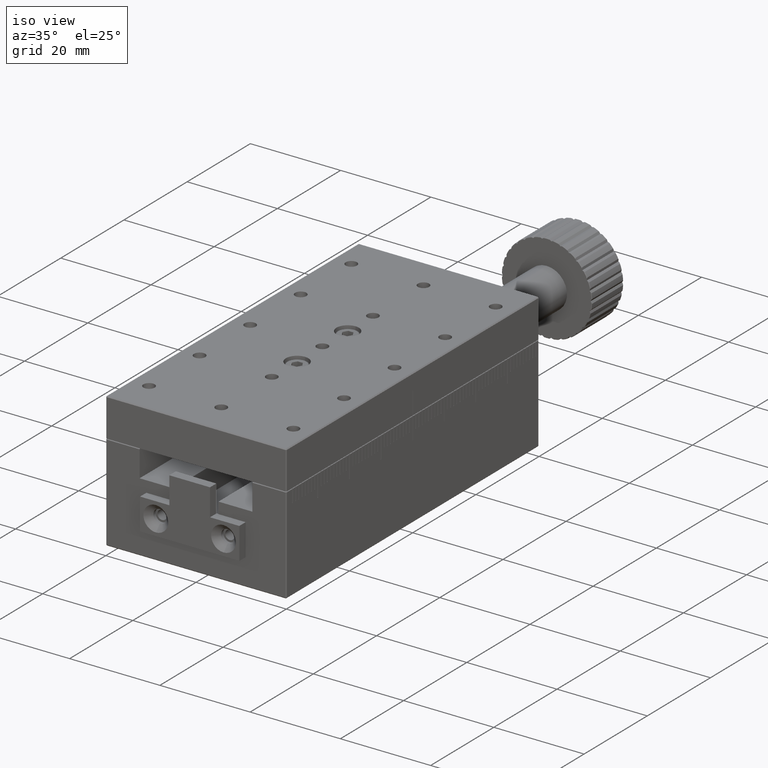
[diagram: clean part render]
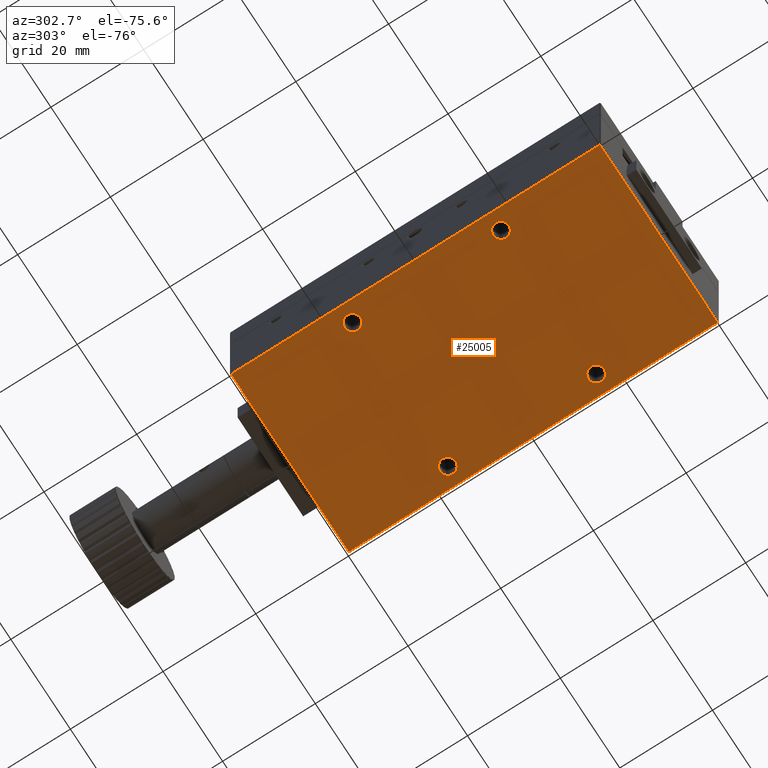
[diagram: tour spotlight — one face highlighted and labeled with its STEP entity id]
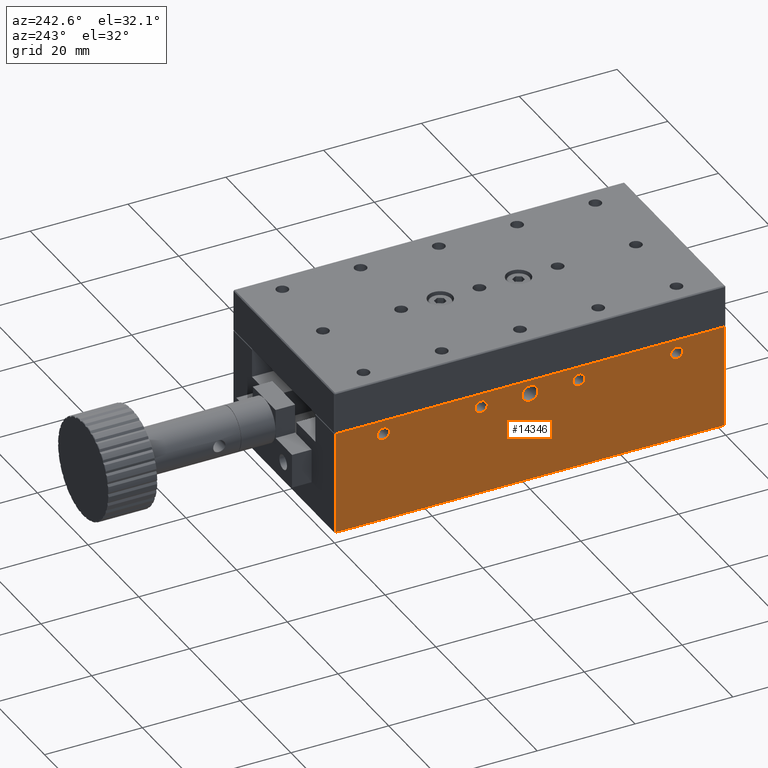
[diagram: tour spotlight — one face highlighted and labeled with its STEP entity id]
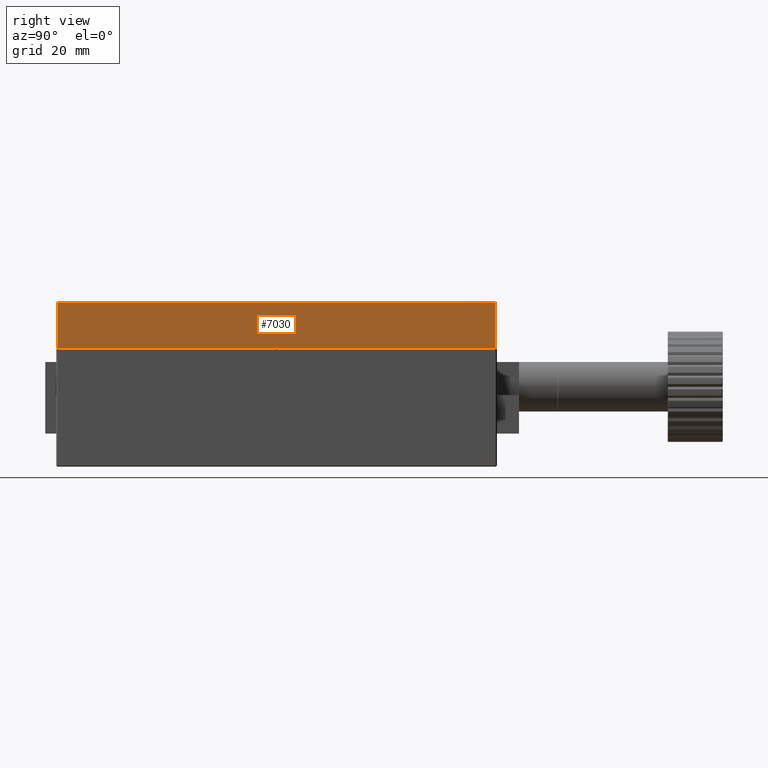
[diagram: tour spotlight — one face highlighted and labeled with its STEP entity id]
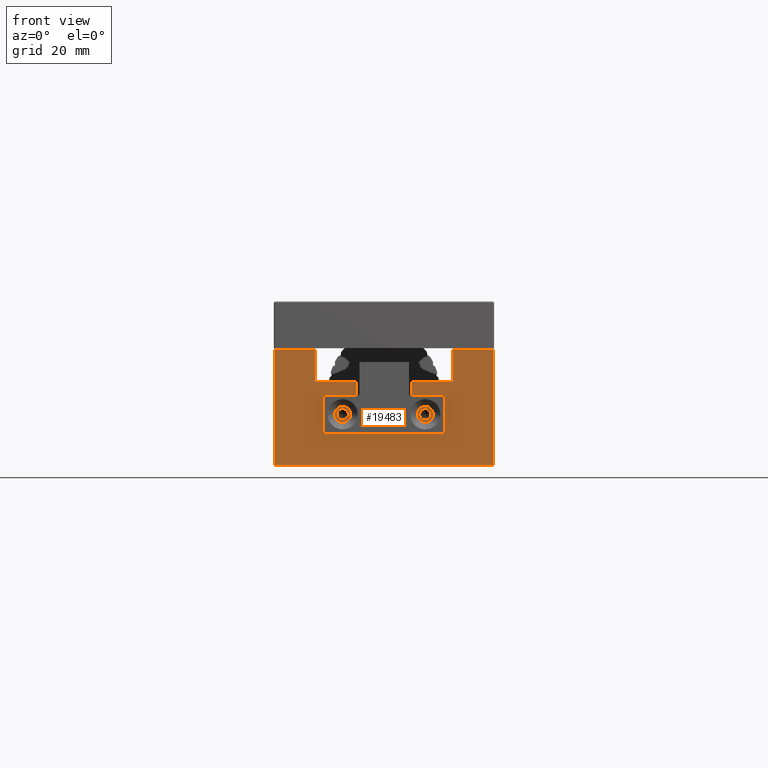
[diagram: tour spotlight — one face highlighted and labeled with its STEP entity id]
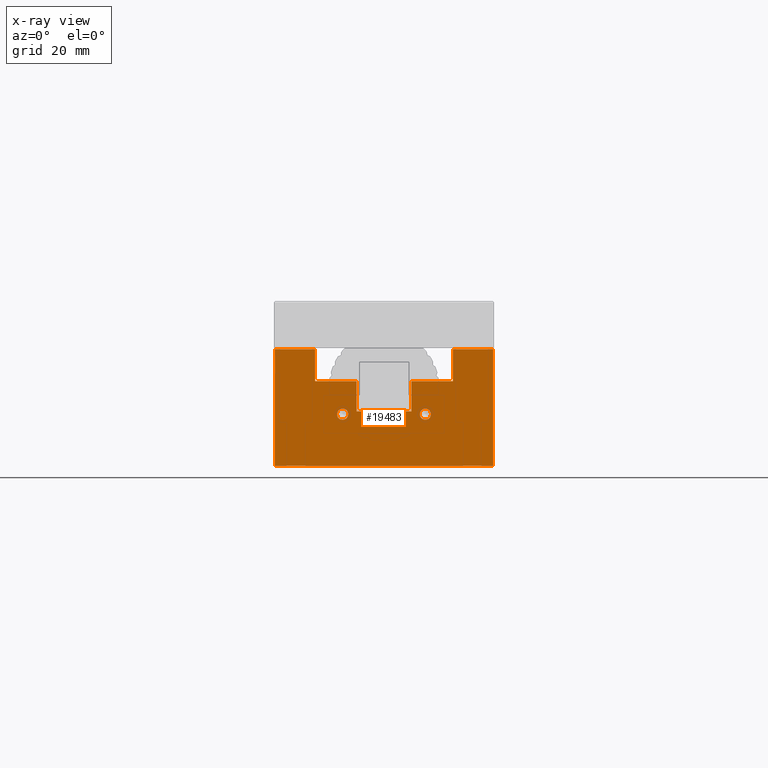
[diagram: x-ray of the same camera — body ghosted, this tour face saturated]
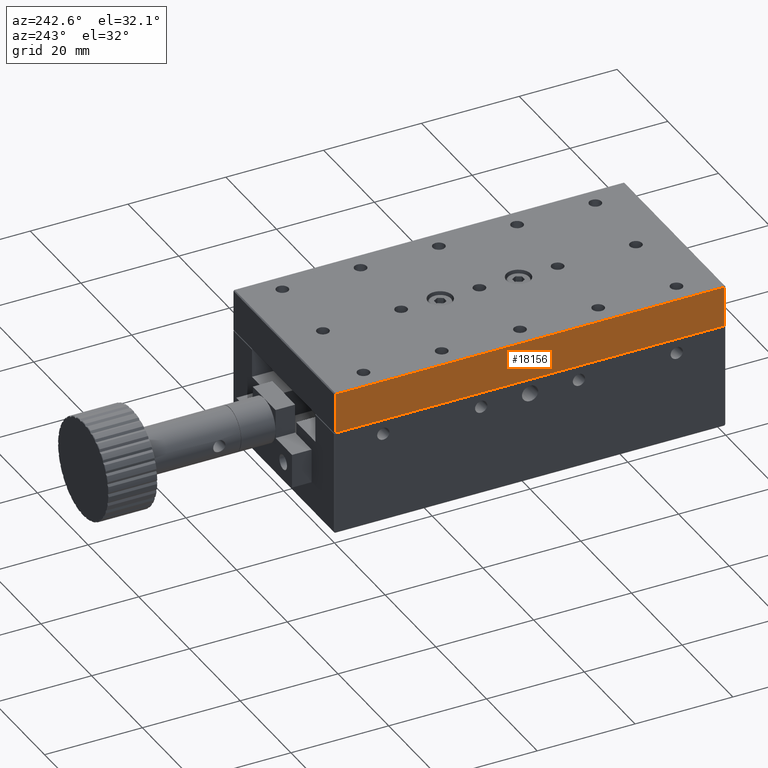
[diagram: tour spotlight — one face highlighted and labeled with its STEP entity id]
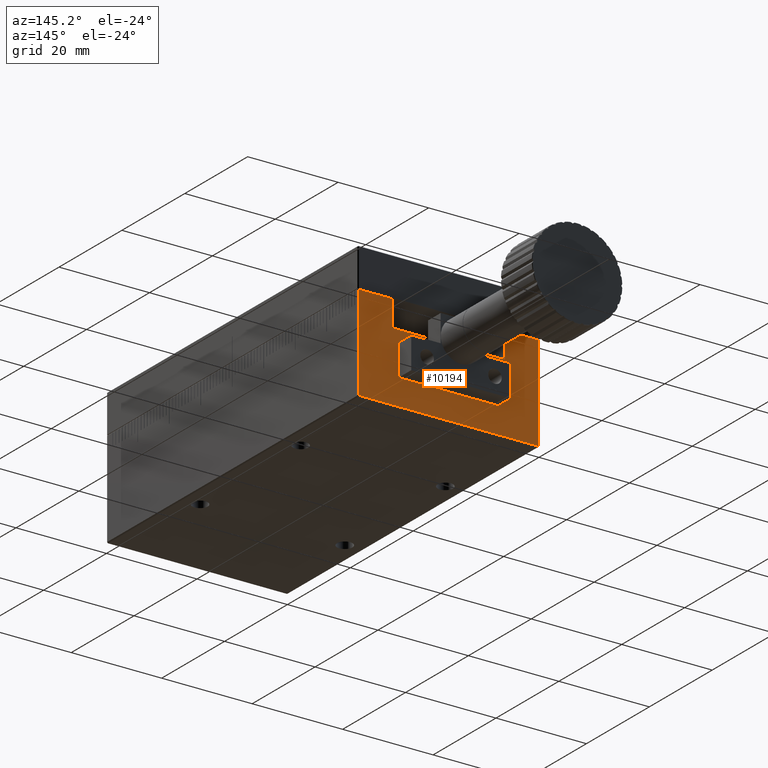
[diagram: tour spotlight — one face highlighted and labeled with its STEP entity id]
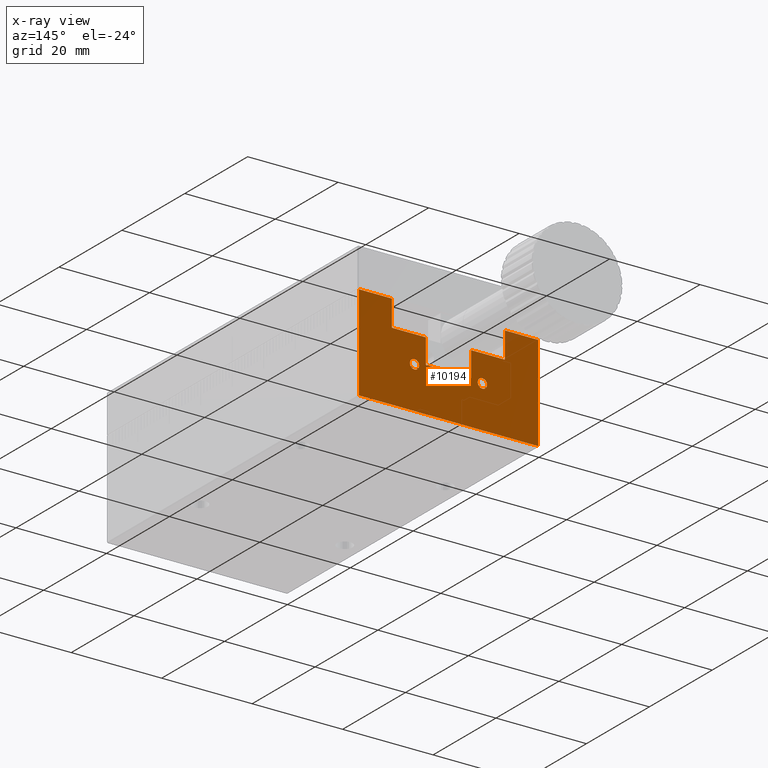
[diagram: x-ray of the same camera — body ghosted, this tour face saturated]
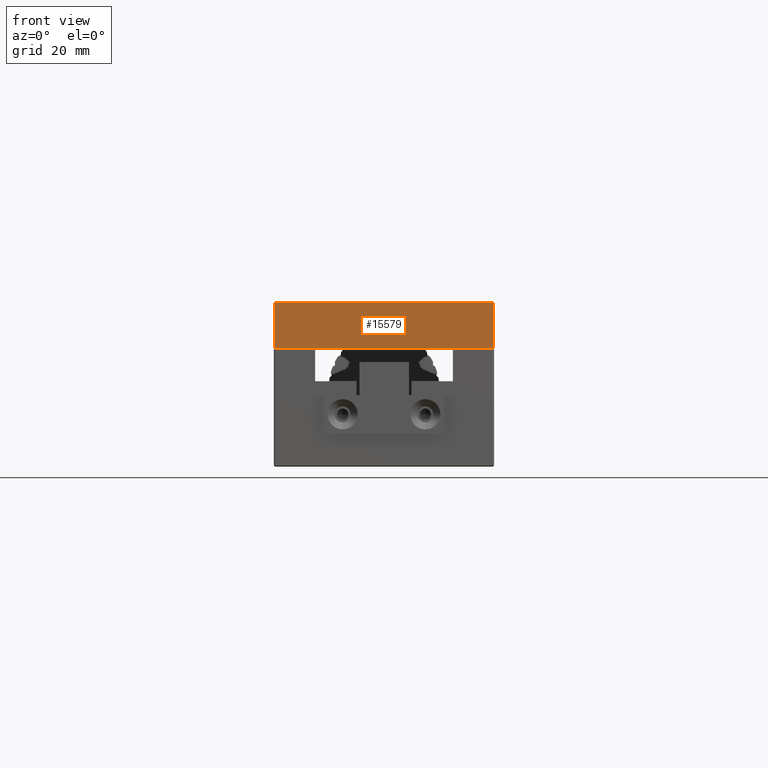
[diagram: tour spotlight — one face highlighted and labeled with its STEP entity id]
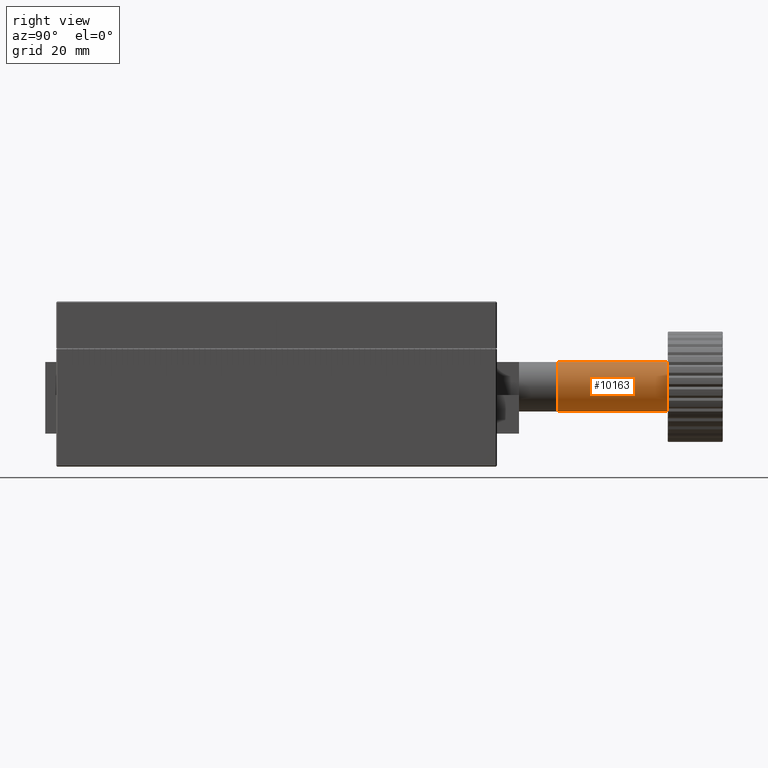
[diagram: tour spotlight — one face highlighted and labeled with its STEP entity id]
A machine part: a face-by-face anatomy tour. The part has 747 B-rep faces; the first image is the clean iso view, then the 8 largest visible faces are spotlighted one at a time (largest first), each with its STEP entity span.

Face 1 — auxiliary view, entity #25005. In plain terms, the highlighted planar face has unit normal (0, 0, -1).
Definition (entity closure, byte-faithful):
#125 = EDGE_CURVE ( 'NONE', #4249, #20550, #20650, .T. ) ;
#585 = AXIS2_PLACEMENT_3D ( 'NONE', #4809, #19618, #6925 ) ;
#870 = VECTOR ( 'NONE', #4841, 1000.000000000000000 ) ;
#1043 = DIRECTION ( 'NONE',  ( 1.000000000000000000, 0.0000000000000000000, 0.0000000000000000000 ) ) ;
#1099 = CARTESIAN_POINT ( 'NONE',  ( -17.69999999999999900, -16.00000000000000000, 0.0000000000000000000 ) ) ;
#1106 = CARTESIAN_POINT ( 'NONE',  ( 19.80000000001240000, -39.79999999999999000, 1.239989827397231000E-011 ) ) ;
#1161 = CARTESIAN_POINT ( 'NONE',  ( 14.30000000000000100, 16.00000000000000000, 0.0000000000000000000 ) ) ;
#1298 = ORIENTED_EDGE ( 'NONE', *, *, #22867, .T. ) ;
#1498 = DIRECTION ( 'NONE',  ( 0.0000000000000000000, -0.0000000000000000000, 1.000000000000000000 ) ) ;
#1611 = VERTEX_POINT ( 'NONE', #20242 ) ;
#1929 = ORIENTED_EDGE ( 'NONE', *, *, #11213, .T. ) ;
#2147 = FACE_OUTER_BOUND ( 'NONE', #10687, .T. ) ;
#2441 = VERTEX_POINT ( 'NONE', #20613 ) ;
#2820 = FACE_BOUND ( 'NONE', #19790, .T. ) ;
#2970 = EDGE_CURVE ( 'NONE', #20550, #7610, #23338, .T. ) ;
#3490 = DIRECTION ( 'NONE',  ( -1.000000000000000000, 0.0000000000000000000, 0.0000000000000000000 ) ) ;
#3900 = VECTOR ( 'NONE', #15047, 1000.000000000000000 ) ;
#4063 = CIRCLE ( 'NONE', #14687, 1.700000000000000200 ) ;
#4249 = VERTEX_POINT ( 'NONE', #9095 ) ;
#4372 = CIRCLE ( 'NONE', #19344, 1.700000000000000200 ) ;
#4776 = CARTESIAN_POINT ( 'NONE',  ( 16.00000000000000000, 16.00000000000000000, 0.0000000000000000000 ) ) ;
#4809 = CARTESIAN_POINT ( 'NONE',  ( 16.00000000000000000, 16.00000000000000000, 0.0000000000000000000 ) ) ;
#4818 = CARTESIAN_POINT ( 'NONE',  ( -19.80000000003720100, -39.79999999997518500, 2.479581309436859100E-011 ) ) ;
#4841 = DIRECTION ( 'NONE',  ( -0.0000000000000000000, -1.000000000000000000, -0.0000000000000000000 ) ) ;
#4927 = CARTESIAN_POINT ( 'NONE',  ( 19.80000000000000100, 0.0000000000000000000, 0.0000000000000000000 ) ) ;
#6422 = CIRCLE ( 'NONE', #10103, 1.700000000000000200 ) ;
#6743 = LINE ( 'NONE', #26628, #16667 ) ;
#6899 = DIRECTION ( 'NONE',  ( 1.000000000000000000, 0.0000000000000000000, 0.0000000000000000000 ) ) ;
#6925 = DIRECTION ( 'NONE',  ( 1.000000000000000000, 0.0000000000000000000, 0.0000000000000000000 ) ) ;
#7077 = AXIS2_PLACEMENT_3D ( 'NONE', #20779, #8101, #22923 ) ;
#7475 = CARTESIAN_POINT ( 'NONE',  ( -16.00000000000000000, -16.00000000000000000, 0.0000000000000000000 ) ) ;
#7610 = VERTEX_POINT ( 'NONE', #1106 ) ;
#7738 = FACE_BOUND ( 'NONE', #18792, .T. ) ;
#8101 = DIRECTION ( 'NONE',  ( 0.0000000000000000000, -0.0000000000000000000, 1.000000000000000000 ) ) ;
#8208 = EDGE_CURVE ( 'NONE', #2441, #16305, #14566, .T. ) ;
#8263 = EDGE_LOOP ( 'NONE', ( #14787, #25254 ) ) ;
#8383 = FACE_BOUND ( 'NONE', #14358, .T. ) ;
#8656 = CIRCLE ( 'NONE', #7077, 1.700000000000000200 ) ;
#9095 = CARTESIAN_POINT ( 'NONE',  ( -19.80000000003720100, 39.79999999997518500, 2.479743502008767400E-011 ) ) ;
#9582 = DIRECTION ( 'NONE',  ( 1.000000000000000000, 0.0000000000000000000, 0.0000000000000000000 ) ) ;
#10041 = VERTEX_POINT ( 'NONE', #4818 ) ;
#10103 = AXIS2_PLACEMENT_3D ( 'NONE', #24504, #11837, #26577 ) ;
#10184 = CIRCLE ( 'NONE', #11075, 1.700000000000000200 ) ;
#10188 = DIRECTION ( 'NONE',  ( 0.0000000000000000000, -0.0000000000000000000, 1.000000000000000000 ) ) ;
#10670 = CIRCLE ( 'NONE', #585, 1.700000000000000200 ) ;
#10687 = EDGE_LOOP ( 'NONE', ( #14213, #27127, #23631, #26822 ) ) ;
#10856 = ORIENTED_EDGE ( 'NONE', *, *, #8208, .T. ) ;
#11075 = AXIS2_PLACEMENT_3D ( 'NONE', #26315, #13687, #1043 ) ;
#11213 = EDGE_CURVE ( 'NONE', #22433, #26847, #17539, .T. ) ;
#11837 = DIRECTION ( 'NONE',  ( 0.0000000000000000000, -0.0000000000000000000, 1.000000000000000000 ) ) ;
#12644 = ORIENTED_EDGE ( 'NONE', *, *, #17114, .T. ) ;
#12914 = VERTEX_POINT ( 'NONE', #18556 ) ;
#13199 = VERTEX_POINT ( 'NONE', #1161 ) ;
#13286 = CARTESIAN_POINT ( 'NONE',  ( 19.80000000000000100, -39.79999999999999700, 0.0000000000000000000 ) ) ;
#13425 = CARTESIAN_POINT ( 'NONE',  ( -17.69999999999999900, 16.00000000000000000, 0.0000000000000000000 ) ) ;
#13687 = DIRECTION ( 'NONE',  ( 0.0000000000000000000, -0.0000000000000000000, 1.000000000000000000 ) ) ;
#13692 = ORIENTED_EDGE ( 'NONE', *, *, #23199, .T. ) ;
#14149 = CARTESIAN_POINT ( 'NONE',  ( -16.00000000000000000, -16.00000000000000000, 0.0000000000000000000 ) ) ;
#14213 = ORIENTED_EDGE ( 'NONE', *, *, #25198, .T. ) ;
#14358 = EDGE_LOOP ( 'NONE', ( #13692, #26600 ) ) ;
#14566 = CIRCLE ( 'NONE', #24969, 1.700000000000000200 ) ;
#14687 = AXIS2_PLACEMENT_3D ( 'NONE', #7475, #22283, #9582 ) ;
#14787 = ORIENTED_EDGE ( 'NONE', *, *, #18772, .T. ) ;
#15038 = VECTOR ( 'NONE', #17776, 1000.000000000000000 ) ;
#15047 = DIRECTION ( 'NONE',  ( -0.0000000000000000000, -1.000000000000000000, -0.0000000000000000000 ) ) ;
#15396 = PLANE ( 'NONE',  #16612 ) ;
#16169 = CARTESIAN_POINT ( 'NONE',  ( 19.80000000002480200, 39.79999999999999700, 2.479978299541746300E-011 ) ) ;
#16253 = DIRECTION ( 'NONE',  ( 1.000000000000000000, 0.0000000000000000000, 0.0000000000000000000 ) ) ;
#16305 = VERTEX_POINT ( 'NONE', #22953 ) ;
#16492 = CARTESIAN_POINT ( 'NONE',  ( -14.30000000000000100, -16.00000000000000000, 0.0000000000000000000 ) ) ;
#16612 = AXIS2_PLACEMENT_3D ( 'NONE', #13286, #23839, #17552 ) ;
#16667 = VECTOR ( 'NONE', #3490, 1000.000000000000000 ) ;
#17114 = EDGE_CURVE ( 'NONE', #26847, #22433, #4063, .T. ) ;
#17309 = EDGE_CURVE ( 'NONE', #22748, #1611, #8656, .T. ) ;
#17539 = CIRCLE ( 'NONE', #19948, 1.700000000000000200 ) ;
#17552 = DIRECTION ( 'NONE',  ( -1.000000000000000000, 0.0000000000000000000, 0.0000000000000000000 ) ) ;
#17556 = EDGE_CURVE ( 'NONE', #13199, #12914, #4372, .T. ) ;
#17776 = DIRECTION ( 'NONE',  ( 1.000000000000000000, -0.0000000000000000000, -0.0000000000000000000 ) ) ;
#18556 = CARTESIAN_POINT ( 'NONE',  ( 17.69999999999999900, 16.00000000000000000, 0.0000000000000000000 ) ) ;
#18772 = EDGE_CURVE ( 'NONE', #1611, #22748, #10184, .T. ) ;
#18792 = EDGE_LOOP ( 'NONE', ( #1929, #12644 ) ) ;
#19035 = FACE_BOUND ( 'NONE', #8263, .T. ) ;
#19191 = EDGE_CURVE ( 'NONE', #4249, #10041, #20755, .T. ) ;
#19344 = AXIS2_PLACEMENT_3D ( 'NONE', #4776, #19592, #6899 ) ;
#19592 = DIRECTION ( 'NONE',  ( 0.0000000000000000000, -0.0000000000000000000, 1.000000000000000000 ) ) ;
#19618 = DIRECTION ( 'NONE',  ( 0.0000000000000000000, -0.0000000000000000000, 1.000000000000000000 ) ) ;
#19790 = EDGE_LOOP ( 'NONE', ( #1298, #10856 ) ) ;
#19948 = AXIS2_PLACEMENT_3D ( 'NONE', #14149, #1498, #16253 ) ;
#20242 = CARTESIAN_POINT ( 'NONE',  ( -14.30000000000000100, 16.00000000000000000, 0.0000000000000000000 ) ) ;
#20550 = VERTEX_POINT ( 'NONE', #16169 ) ;
#20613 = CARTESIAN_POINT ( 'NONE',  ( 14.30000000000000100, -16.00000000000000000, 0.0000000000000000000 ) ) ;
#20650 = LINE ( 'NONE', #22092, #15038 ) ;
#20755 = LINE ( 'NONE', #23383, #3900 ) ;
#20779 = CARTESIAN_POINT ( 'NONE',  ( -16.00000000000000000, 16.00000000000000000, 0.0000000000000000000 ) ) ;
#22092 = CARTESIAN_POINT ( 'NONE',  ( 0.0000000000000000000, 39.79999999999999700, 0.0000000000000000000 ) ) ;
#22283 = DIRECTION ( 'NONE',  ( 0.0000000000000000000, -0.0000000000000000000, 1.000000000000000000 ) ) ;
#22433 = VERTEX_POINT ( 'NONE', #16492 ) ;
#22748 = VERTEX_POINT ( 'NONE', #13425 ) ;
#22867 = EDGE_CURVE ( 'NONE', #16305, #2441, #6422, .T. ) ;
#22883 = CARTESIAN_POINT ( 'NONE',  ( 16.00000000000000000, -16.00000000000000000, 0.0000000000000000000 ) ) ;
#22923 = DIRECTION ( 'NONE',  ( 1.000000000000000000, 0.0000000000000000000, 0.0000000000000000000 ) ) ;
#22953 = CARTESIAN_POINT ( 'NONE',  ( 17.69999999999999900, -16.00000000000000000, 0.0000000000000000000 ) ) ;
#23199 = EDGE_CURVE ( 'NONE', #12914, #13199, #10670, .T. ) ;
#23338 = LINE ( 'NONE', #4927, #870 ) ;
#23383 = CARTESIAN_POINT ( 'NONE',  ( -19.80000000000000100, 0.0000000000000000000, 0.0000000000000000000 ) ) ;
#23631 = ORIENTED_EDGE ( 'NONE', *, *, #125, .T. ) ;
#23839 = DIRECTION ( 'NONE',  ( 0.0000000000000000000, 0.0000000000000000000, -1.000000000000000000 ) ) ;
#24504 = CARTESIAN_POINT ( 'NONE',  ( 16.00000000000000000, -16.00000000000000000, 0.0000000000000000000 ) ) ;
#24969 = AXIS2_PLACEMENT_3D ( 'NONE', #22883, #10188, #24979 ) ;
#24979 = DIRECTION ( 'NONE',  ( 1.000000000000000000, 0.0000000000000000000, 0.0000000000000000000 ) ) ;
#25005 = ADVANCED_FACE ( 'NONE', ( #2820, #7738, #8383, #19035, #2147 ), #15396, .T. ) ;
#25198 = EDGE_CURVE ( 'NONE', #7610, #10041, #6743, .T. ) ;
#25254 = ORIENTED_EDGE ( 'NONE', *, *, #17309, .T. ) ;
#26315 = CARTESIAN_POINT ( 'NONE',  ( -16.00000000000000000, 16.00000000000000000, 0.0000000000000000000 ) ) ;
#26577 = DIRECTION ( 'NONE',  ( 1.000000000000000000, 0.0000000000000000000, 0.0000000000000000000 ) ) ;
#26600 = ORIENTED_EDGE ( 'NONE', *, *, #17556, .T. ) ;
#26628 = CARTESIAN_POINT ( 'NONE',  ( 0.0000000000000000000, -39.79999999999999700, 0.0000000000000000000 ) ) ;
#26822 = ORIENTED_EDGE ( 'NONE', *, *, #2970, .T. ) ;
#26847 = VERTEX_POINT ( 'NONE', #1099 ) ;
#27127 = ORIENTED_EDGE ( 'NONE', *, *, #19191, .F. ) ;

Face 2 — auxiliary view, entity #14346. In plain terms, the highlighted planar face has unit normal (1, -0, 0).
Definition (entity closure, byte-faithful):
#119 = EDGE_CURVE ( 'NONE', #21055, #24564, #16356, .T. ) ;
#239 = LINE ( 'NONE', #3832, #22040 ) ;
#892 = ORIENTED_EDGE ( 'NONE', *, *, #21403, .F. ) ;
#1005 = FACE_BOUND ( 'NONE', #25337, .T. ) ;
#1023 = DIRECTION ( 'NONE',  ( -1.000000000000000000, 0.0000000000000000000, 0.0000000000000000000 ) ) ;
#1275 = DIRECTION ( 'NONE',  ( -1.000000000000000000, 0.0000000000000000000, 0.0000000000000000000 ) ) ;
#1839 = ORIENTED_EDGE ( 'NONE', *, *, #2480, .F. ) ;
#1876 = AXIS2_PLACEMENT_3D ( 'NONE', #15149, #2506, #17281 ) ;
#2017 = DIRECTION ( 'NONE',  ( -1.000000000000000000, 0.0000000000000000000, 0.0000000000000000000 ) ) ;
#2386 = VERTEX_POINT ( 'NONE', #19203 ) ;
#2480 = EDGE_CURVE ( 'NONE', #20091, #3460, #11111, .T. ) ;
#2506 = DIRECTION ( 'NONE',  ( -1.000000000000000000, 0.0000000000000000000, 0.0000000000000000000 ) ) ;
#2849 = LINE ( 'NONE', #3435, #24652 ) ;
#3240 = EDGE_CURVE ( 'NONE', #18836, #22515, #25263, .T. ) ;
#3285 = VERTEX_POINT ( 'NONE', #13562 ) ;
#3346 = CARTESIAN_POINT ( 'NONE',  ( -19.99999999997520200, -39.79999999999999000, 21.30000000002479900 ) ) ;
#3373 = AXIS2_PLACEMENT_3D ( 'NONE', #14651, #2017, #16791 ) ;
#3435 = CARTESIAN_POINT ( 'NONE',  ( -20.00000000000000000, 39.79999999999999700, 10.75000000000000000 ) ) ;
#3460 = VERTEX_POINT ( 'NONE', #15764 ) ;
#3467 = VECTOR ( 'NONE', #21627, 1000.000000000000000 ) ;
#3518 = CARTESIAN_POINT ( 'NONE',  ( -20.00000000000000000, 0.0000000000000000000, 21.30000000000000100 ) ) ;
#3811 = EDGE_CURVE ( 'NONE', #16577, #3285, #24571, .T. ) ;
#3832 = CARTESIAN_POINT ( 'NONE',  ( -20.00000000000000000, 0.0000000000000000000, 0.2000000000000000100 ) ) ;
#3917 = CIRCLE ( 'NONE', #3373, 1.250000000000001100 ) ;
#4161 = EDGE_CURVE ( 'NONE', #24564, #21055, #9957, .T. ) ;
#4557 = AXIS2_PLACEMENT_3D ( 'NONE', #15241, #23770, #11077 ) ;
#5559 = CIRCLE ( 'NONE', #8987, 1.250000000000001100 ) ;
#5719 = EDGE_LOOP ( 'NONE', ( #12271, #12732 ) ) ;
#6071 = CARTESIAN_POINT ( 'NONE',  ( -19.99999999997520200, 39.79999999999999700, 21.30000000002479900 ) ) ;
#6607 = FACE_BOUND ( 'NONE', #22069, .T. ) ;
#7151 = EDGE_LOOP ( 'NONE', ( #17540, #892 ) ) ;
#7245 = FACE_BOUND ( 'NONE', #5719, .T. ) ;
#7540 = VECTOR ( 'NONE', #16159, 1000.000000000000000 ) ;
#8678 = AXIS2_PLACEMENT_3D ( 'NONE', #13664, #1023, #15782 ) ;
#8727 = EDGE_CURVE ( 'NONE', #11050, #21259, #2849, .T. ) ;
#8931 = PLANE ( 'NONE',  #4557 ) ;
#8943 = EDGE_CURVE ( 'NONE', #3460, #20091, #13070, .T. ) ;
#8987 = AXIS2_PLACEMENT_3D ( 'NONE', #23646, #10950, #25734 ) ;
#9073 = VERTEX_POINT ( 'NONE', #11984 ) ;
#9318 = DIRECTION ( 'NONE',  ( 0.0000000000000000000, 0.0000000000000000000, 1.000000000000000000 ) ) ;
#9778 = DIRECTION ( 'NONE',  ( -0.0000000000000000000, -0.0000000000000000000, 1.000000000000000000 ) ) ;
#9957 = CIRCLE ( 'NONE', #20374, 1.650000000000002100 ) ;
#10950 = DIRECTION ( 'NONE',  ( -1.000000000000000000, 0.0000000000000000000, 0.0000000000000000000 ) ) ;
#11050 = VERTEX_POINT ( 'NONE', #24152 ) ;
#11077 = DIRECTION ( 'NONE',  ( 0.0000000000000000000, 0.0000000000000000000, -1.000000000000000000 ) ) ;
#11111 = CIRCLE ( 'NONE', #16069, 1.250000000000001100 ) ;
#11256 = CARTESIAN_POINT ( 'NONE',  ( -20.00000000000000000, 10.00000000000000000, 19.75000000000000000 ) ) ;
#11276 = CARTESIAN_POINT ( 'NONE',  ( -20.00000000000000000, 30.00000000000000000, 18.50000000000000000 ) ) ;
#11459 = EDGE_CURVE ( 'NONE', #18219, #9073, #18195, .T. ) ;
#11489 = CARTESIAN_POINT ( 'NONE',  ( -20.00000000000000000, 30.00000000000000000, 17.24999999999999600 ) ) ;
#11851 = CARTESIAN_POINT ( 'NONE',  ( -20.00000000000000000, -10.00000000000000000, 18.50000000000000000 ) ) ;
#11984 = CARTESIAN_POINT ( 'NONE',  ( -20.00000000000000000, 30.00000000000000000, 19.75000000000000000 ) ) ;
#12271 = ORIENTED_EDGE ( 'NONE', *, *, #21303, .F. ) ;
#12285 = CARTESIAN_POINT ( 'NONE',  ( -20.00000000000000000, -10.00000000000000000, 17.24999999999999600 ) ) ;
#12564 = EDGE_LOOP ( 'NONE', ( #25427, #16939 ) ) ;
#12732 = ORIENTED_EDGE ( 'NONE', *, *, #16118, .F. ) ;
#13070 = CIRCLE ( 'NONE', #8678, 1.250000000000001100 ) ;
#13181 = LINE ( 'NONE', #3518, #7540 ) ;
#13361 = CARTESIAN_POINT ( 'NONE',  ( -20.00000000000000000, -39.79999999999999700, 10.75000000000000000 ) ) ;
#13423 = DIRECTION ( 'NONE',  ( 0.0000000000000000000, 0.0000000000000000000, 1.000000000000000000 ) ) ;
#13562 = CARTESIAN_POINT ( 'NONE',  ( -20.00000000000000000, 10.00000000000000000, 17.24999999999999600 ) ) ;
#13664 = CARTESIAN_POINT ( 'NONE',  ( -20.00000000000000000, -30.00000000000000000, 18.50000000000000000 ) ) ;
#13972 = DIRECTION ( 'NONE',  ( 0.0000000000000000000, 0.0000000000000000000, 1.000000000000000000 ) ) ;
#14079 = CARTESIAN_POINT ( 'NONE',  ( -20.00000000000000000, -30.00000000000000000, 17.24999999999999600 ) ) ;
#14346 = ADVANCED_FACE ( 'NONE', ( #18530, #7245, #6607, #1005, #22830, #17192 ), #8931, .F. ) ;
#14651 = CARTESIAN_POINT ( 'NONE',  ( -20.00000000000000000, -10.00000000000000000, 18.50000000000000000 ) ) ;
#15006 = ORIENTED_EDGE ( 'NONE', *, *, #20342, .F. ) ;
#15046 = AXIS2_PLACEMENT_3D ( 'NONE', #26220, #24143, #9318 ) ;
#15149 = CARTESIAN_POINT ( 'NONE',  ( -20.00000000000000000, 30.00000000000000000, 18.50000000000000000 ) ) ;
#15241 = CARTESIAN_POINT ( 'NONE',  ( -20.00000000000000000, -39.79999999999999700, 21.30000000000000100 ) ) ;
#15764 = CARTESIAN_POINT ( 'NONE',  ( -20.00000000000000000, -30.00000000000000000, 19.75000000000000000 ) ) ;
#15782 = DIRECTION ( 'NONE',  ( 0.0000000000000000000, 0.0000000000000000000, 1.000000000000000000 ) ) ;
#16068 = ORIENTED_EDGE ( 'NONE', *, *, #11459, .F. ) ;
#16069 = AXIS2_PLACEMENT_3D ( 'NONE', #27103, #1275, #20385 ) ;
#16118 = EDGE_CURVE ( 'NONE', #19016, #2386, #26886, .T. ) ;
#16159 = DIRECTION ( 'NONE',  ( -0.0000000000000000000, -1.000000000000000000, -0.0000000000000000000 ) ) ;
#16356 = CIRCLE ( 'NONE', #15046, 1.650000000000002100 ) ;
#16577 = VERTEX_POINT ( 'NONE', #11256 ) ;
#16791 = DIRECTION ( 'NONE',  ( 0.0000000000000000000, 0.0000000000000000000, 1.000000000000000000 ) ) ;
#16939 = ORIENTED_EDGE ( 'NONE', *, *, #4161, .F. ) ;
#17192 = FACE_OUTER_BOUND ( 'NONE', #24843, .T. ) ;
#17281 = DIRECTION ( 'NONE',  ( 0.0000000000000000000, 0.0000000000000000000, 1.000000000000000000 ) ) ;
#17540 = ORIENTED_EDGE ( 'NONE', *, *, #3811, .F. ) ;
#17642 = DIRECTION ( 'NONE',  ( -1.000000000000000000, 0.0000000000000000000, 0.0000000000000000000 ) ) ;
#17662 = CARTESIAN_POINT ( 'NONE',  ( -20.00000000000000000, 10.00000000000000000, 18.50000000000000000 ) ) ;
#18195 = CIRCLE ( 'NONE', #1876, 1.250000000000001100 ) ;
#18219 = VERTEX_POINT ( 'NONE', #11489 ) ;
#18381 = ORIENTED_EDGE ( 'NONE', *, *, #21827, .F. ) ;
#18398 = CIRCLE ( 'NONE', #21571, 1.250000000000001100 ) ;
#18530 = FACE_BOUND ( 'NONE', #7151, .T. ) ;
#18537 = ORIENTED_EDGE ( 'NONE', *, *, #18898, .F. ) ;
#18827 = CARTESIAN_POINT ( 'NONE',  ( -19.99999999997520200, -39.79999999999999000, 0.1999999999751999900 ) ) ;
#18836 = VERTEX_POINT ( 'NONE', #3346 ) ;
#18898 = EDGE_CURVE ( 'NONE', #21259, #18836, #13181, .T. ) ;
#19016 = VERTEX_POINT ( 'NONE', #12285 ) ;
#19203 = CARTESIAN_POINT ( 'NONE',  ( -20.00000000000000000, -10.00000000000000000, 19.75000000000000000 ) ) ;
#20091 = VERTEX_POINT ( 'NONE', #14079 ) ;
#20342 = EDGE_CURVE ( 'NONE', #9073, #18219, #18398, .T. ) ;
#20374 = AXIS2_PLACEMENT_3D ( 'NONE', #27020, #27013, #26951 ) ;
#20385 = DIRECTION ( 'NONE',  ( 0.0000000000000000000, 0.0000000000000000000, 1.000000000000000000 ) ) ;
#20728 = DIRECTION ( 'NONE',  ( 0.0000000000000000000, 1.000000000000000000, 0.0000000000000000000 ) ) ;
#21055 = VERTEX_POINT ( 'NONE', #24303 ) ;
#21259 = VERTEX_POINT ( 'NONE', #6071 ) ;
#21303 = EDGE_CURVE ( 'NONE', #2386, #19016, #3917, .T. ) ;
#21403 = EDGE_CURVE ( 'NONE', #3285, #16577, #5559, .T. ) ;
#21423 = AXIS2_PLACEMENT_3D ( 'NONE', #17662, #17642, #25722 ) ;
#21571 = AXIS2_PLACEMENT_3D ( 'NONE', #11276, #26054, #13423 ) ;
#21627 = DIRECTION ( 'NONE',  ( 0.0000000000000000000, 0.0000000000000000000, -1.000000000000000000 ) ) ;
#21827 = EDGE_CURVE ( 'NONE', #22515, #11050, #239, .T. ) ;
#22040 = VECTOR ( 'NONE', #20728, 1000.000000000000000 ) ;
#22069 = EDGE_LOOP ( 'NONE', ( #25928, #1839 ) ) ;
#22515 = VERTEX_POINT ( 'NONE', #18827 ) ;
#22830 = FACE_BOUND ( 'NONE', #12564, .T. ) ;
#22969 = ORIENTED_EDGE ( 'NONE', *, *, #8727, .F. ) ;
#23646 = CARTESIAN_POINT ( 'NONE',  ( -20.00000000000000000, 10.00000000000000000, 18.50000000000000000 ) ) ;
#23770 = DIRECTION ( 'NONE',  ( 1.000000000000000000, -0.0000000000000000000, 0.0000000000000000000 ) ) ;
#24143 = DIRECTION ( 'NONE',  ( -1.000000000000000000, 0.0000000000000000000, 0.0000000000000000000 ) ) ;
#24152 = CARTESIAN_POINT ( 'NONE',  ( -19.99999999997520200, 39.79999999999999000, 0.1999999999752000700 ) ) ;
#24303 = CARTESIAN_POINT ( 'NONE',  ( -20.00000000000000000, 0.0000000000000000000, 20.15000000000000200 ) ) ;
#24392 = ORIENTED_EDGE ( 'NONE', *, *, #3240, .F. ) ;
#24564 = VERTEX_POINT ( 'NONE', #24860 ) ;
#24571 = CIRCLE ( 'NONE', #21423, 1.250000000000001100 ) ;
#24652 = VECTOR ( 'NONE', #9778, 1000.000000000000000 ) ;
#24843 = EDGE_LOOP ( 'NONE', ( #22969, #18381, #24392, #18537 ) ) ;
#24860 = CARTESIAN_POINT ( 'NONE',  ( -20.00000000000000000, 2.020667218593135500E-016, 16.84999999999999800 ) ) ;
#25263 = LINE ( 'NONE', #13361, #3467 ) ;
#25337 = EDGE_LOOP ( 'NONE', ( #15006, #16068 ) ) ;
#25427 = ORIENTED_EDGE ( 'NONE', *, *, #119, .F. ) ;
#25722 = DIRECTION ( 'NONE',  ( 0.0000000000000000000, 0.0000000000000000000, 1.000000000000000000 ) ) ;
#25734 = DIRECTION ( 'NONE',  ( 0.0000000000000000000, 0.0000000000000000000, 1.000000000000000000 ) ) ;
#25809 = AXIS2_PLACEMENT_3D ( 'NONE', #11851, #26588, #13972 ) ;
#25928 = ORIENTED_EDGE ( 'NONE', *, *, #8943, .F. ) ;
#26054 = DIRECTION ( 'NONE',  ( -1.000000000000000000, 0.0000000000000000000, 0.0000000000000000000 ) ) ;
#26220 = CARTESIAN_POINT ( 'NONE',  ( -20.00000000000000000, 0.0000000000000000000, 18.50000000000000000 ) ) ;
#26588 = DIRECTION ( 'NONE',  ( -1.000000000000000000, 0.0000000000000000000, 0.0000000000000000000 ) ) ;
#26886 = CIRCLE ( 'NONE', #25809, 1.250000000000001100 ) ;
#26951 = DIRECTION ( 'NONE',  ( 0.0000000000000000000, 0.0000000000000000000, 1.000000000000000000 ) ) ;
#27013 = DIRECTION ( 'NONE',  ( -1.000000000000000000, 0.0000000000000000000, 0.0000000000000000000 ) ) ;
#27020 = CARTESIAN_POINT ( 'NONE',  ( -20.00000000000000000, 0.0000000000000000000, 18.50000000000000000 ) ) ;
#27103 = CARTESIAN_POINT ( 'NONE',  ( -20.00000000000000000, -30.00000000000000000, 18.50000000000000000 ) ) ;

Face 3 — right view, entity #7030. In plain terms, the highlighted planar face has unit normal (-1, 0, 0).
Definition (entity closure, byte-faithful):
#176 = DIRECTION ( 'NONE',  ( -0.0000000000000000000, -0.0000000000000000000, 1.000000000000000000 ) ) ;
#529 = CARTESIAN_POINT ( 'NONE',  ( 20.00000000000000000, -39.79999999999999700, 25.64999999999999900 ) ) ;
#820 = EDGE_CURVE ( 'NONE', #16995, #15368, #5698, .T. ) ;
#993 = DIRECTION ( 'NONE',  ( -0.0000000000000000000, -1.000000000000000000, -0.0000000000000000000 ) ) ;
#1101 = DIRECTION ( 'NONE',  ( 0.0000000000000000000, 0.0000000000000000000, -1.000000000000000000 ) ) ;
#2535 = ORIENTED_EDGE ( 'NONE', *, *, #23638, .F. ) ;
#2562 = CARTESIAN_POINT ( 'NONE',  ( 20.00000000000000400, -39.79999999999999000, 21.50000000000000400 ) ) ;
#2659 = DIRECTION ( 'NONE',  ( -0.0000000000000000000, -0.0000000000000000000, 1.000000000000000000 ) ) ;
#3793 = LINE ( 'NONE', #26254, #14379 ) ;
#3899 = CARTESIAN_POINT ( 'NONE',  ( 20.00000000000000000, -0.05000002359999491900, 25.65000000000000200 ) ) ;
#4107 = ORIENTED_EDGE ( 'NONE', *, *, #10495, .F. ) ;
#4274 = VECTOR ( 'NONE', #7633, 1000.000000000000000 ) ;
#4966 = VERTEX_POINT ( 'NONE', #19663 ) ;
#5019 = LINE ( 'NONE', #529, #9961 ) ;
#5234 = CARTESIAN_POINT ( 'NONE',  ( 20.00000000000000000, 39.79999999999999700, 25.64999999999999900 ) ) ;
#5539 = CARTESIAN_POINT ( 'NONE',  ( 20.00000000000000000, 0.0000000000000000000, 29.80000000000000100 ) ) ;
#5698 = LINE ( 'NONE', #8071, #11985 ) ;
#6343 = LINE ( 'NONE', #12826, #22569 ) ;
#6497 = CARTESIAN_POINT ( 'NONE',  ( 20.00000000000000000, 0.05000000589999960300, 26.50000000092499900 ) ) ;
#6918 = VECTOR ( 'NONE', #23039, 1000.000000000000000 ) ;
#7030 = ADVANCED_FACE ( 'NONE', ( #19645 ), #25727, .F. ) ;
#7578 = LINE ( 'NONE', #20872, #6918 ) ;
#7633 = DIRECTION ( 'NONE',  ( 0.0000000000000000000, -1.000000000000000000, 0.0000000000000000000 ) ) ;
#7791 = VERTEX_POINT ( 'NONE', #23106 ) ;
#8071 = CARTESIAN_POINT ( 'NONE',  ( 20.00000000000000000, 0.0000000000000000000, 21.50000000000000000 ) ) ;
#8107 = DIRECTION ( 'NONE',  ( -0.0000000000000000000, -1.000000000000000000, -0.0000000000000000000 ) ) ;
#8227 = LINE ( 'NONE', #3899, #13219 ) ;
#8683 = ORIENTED_EDGE ( 'NONE', *, *, #11486, .T. ) ;
#9490 = EDGE_CURVE ( 'NONE', #7791, #15820, #3793, .T. ) ;
#9961 = VECTOR ( 'NONE', #2659, 1000.000000000000000 ) ;
#10495 = EDGE_CURVE ( 'NONE', #15820, #16692, #5019, .T. ) ;
#10780 = ORIENTED_EDGE ( 'NONE', *, *, #9490, .F. ) ;
#11101 = ORIENTED_EDGE ( 'NONE', *, *, #19447, .F. ) ;
#11486 = EDGE_CURVE ( 'NONE', #4966, #16692, #20463, .T. ) ;
#11985 = VECTOR ( 'NONE', #8107, 1000.000000000000000 ) ;
#12826 = CARTESIAN_POINT ( 'NONE',  ( 20.00000000000000000, 0.05000002359999838900, 25.64999999999999900 ) ) ;
#13219 = VECTOR ( 'NONE', #14436, 1000.000000000000000 ) ;
#14379 = VECTOR ( 'NONE', #993, 1000.000000000000000 ) ;
#14436 = DIRECTION ( 'NONE',  ( 0.0000000000000000000, 0.0000000000000000000, -1.000000000000000000 ) ) ;
#15368 = VERTEX_POINT ( 'NONE', #25334 ) ;
#15820 = VERTEX_POINT ( 'NONE', #2562 ) ;
#16692 = VERTEX_POINT ( 'NONE', #22180 ) ;
#16995 = VERTEX_POINT ( 'NONE', #19716 ) ;
#17515 = ORIENTED_EDGE ( 'NONE', *, *, #820, .F. ) ;
#19447 = EDGE_CURVE ( 'NONE', #4966, #16995, #24706, .T. ) ;
#19645 = FACE_OUTER_BOUND ( 'NONE', #21023, .T. ) ;
#19663 = CARTESIAN_POINT ( 'NONE',  ( 19.99999999998760100, 39.80000000001239600, 29.80000000000000100 ) ) ;
#19716 = CARTESIAN_POINT ( 'NONE',  ( 20.00000000000000400, 39.79999999999999000, 21.50000000000000400 ) ) ;
#20115 = AXIS2_PLACEMENT_3D ( 'NONE', #25347, #25169, #24911 ) ;
#20463 = LINE ( 'NONE', #5539, #4274 ) ;
#20621 = EDGE_CURVE ( 'NONE', #24923, #7791, #8227, .T. ) ;
#20642 = EDGE_CURVE ( 'NONE', #21977, #24923, #7578, .T. ) ;
#20872 = CARTESIAN_POINT ( 'NONE',  ( 20.00000000000000000, 0.0000000000000000000, 26.50000000370000200 ) ) ;
#21023 = EDGE_LOOP ( 'NONE', ( #26843, #25148, #2535, #17515, #11101, #8683, #4107, #10780 ) ) ;
#21977 = VERTEX_POINT ( 'NONE', #6497 ) ;
#22180 = CARTESIAN_POINT ( 'NONE',  ( 19.99999999999380100, -39.80000000000619300, 29.80000000000000100 ) ) ;
#22569 = VECTOR ( 'NONE', #176, 1000.000000000000000 ) ;
#23039 = DIRECTION ( 'NONE',  ( -0.0000000000000000000, -1.000000000000000000, -0.0000000000000000000 ) ) ;
#23106 = CARTESIAN_POINT ( 'NONE',  ( 20.00000000000000000, -0.05000000590000082400, 21.50000000000000000 ) ) ;
#23638 = EDGE_CURVE ( 'NONE', #15368, #21977, #6343, .T. ) ;
#24065 = VECTOR ( 'NONE', #1101, 1000.000000000000000 ) ;
#24706 = LINE ( 'NONE', #5234, #24065 ) ;
#24911 = DIRECTION ( 'NONE',  ( 0.0000000000000000000, 1.000000000000000000, 0.0000000000000000000 ) ) ;
#24923 = VERTEX_POINT ( 'NONE', #25753 ) ;
#25148 = ORIENTED_EDGE ( 'NONE', *, *, #20642, .F. ) ;
#25169 = DIRECTION ( 'NONE',  ( -1.000000000000000000, 0.0000000000000000000, 0.0000000000000000000 ) ) ;
#25334 = CARTESIAN_POINT ( 'NONE',  ( 20.00000000000000000, 0.05000000589999511300, 21.50000000000000000 ) ) ;
#25347 = CARTESIAN_POINT ( 'NONE',  ( 20.00000000000000000, -39.79999999999999700, 29.80000000000000100 ) ) ;
#25727 = PLANE ( 'NONE',  #20115 ) ;
#25753 = CARTESIAN_POINT ( 'NONE',  ( 20.00000000000000000, -0.05000000589999873500, 26.50000000092499900 ) ) ;
#26254 = CARTESIAN_POINT ( 'NONE',  ( 20.00000000000000000, 0.0000000000000000000, 21.50000000000000000 ) ) ;
#26843 = ORIENTED_EDGE ( 'NONE', *, *, #20621, .F. ) ;

Face 4 — front view, entity #19483. An x-ray twin of the same camera follows (body ghosted, this face saturated) — the face is partly hidden behind the body. In plain terms, the highlighted planar face has unit normal (0, 1, 0).
Definition (entity closure, byte-faithful):
#322 = EDGE_CURVE ( 'NONE', #24252, #26171, #20000, .T. ) ;
#637 = AXIS2_PLACEMENT_3D ( 'NONE', #11994, #12088, #14223 ) ;
#681 = CARTESIAN_POINT ( 'NONE',  ( -7.500000000000000000, -40.00000000000000000, 10.52499999999999900 ) ) ;
#926 = FACE_BOUND ( 'NONE', #1117, .T. ) ;
#1117 = EDGE_LOOP ( 'NONE', ( #4582, #3699 ) ) ;
#1162 = VERTEX_POINT ( 'NONE', #7128 ) ;
#1251 = ORIENTED_EDGE ( 'NONE', *, *, #18160, .F. ) ;
#1524 = LINE ( 'NONE', #6066, #23343 ) ;
#1577 = FACE_BOUND ( 'NONE', #25208, .T. ) ;
#1601 = EDGE_CURVE ( 'NONE', #13607, #18134, #24176, .T. ) ;
#2206 = VECTOR ( 'NONE', #22325, 1000.000000000000000 ) ;
#2383 = ORIENTED_EDGE ( 'NONE', *, *, #8187, .F. ) ;
#2559 = VERTEX_POINT ( 'NONE', #21951 ) ;
#2757 = ORIENTED_EDGE ( 'NONE', *, *, #12738, .T. ) ;
#2810 = DIRECTION ( 'NONE',  ( -0.0000000000000000000, -0.0000000000000000000, -1.000000000000000000 ) ) ;
#2943 = VERTEX_POINT ( 'NONE', #10682 ) ;
#3249 = VECTOR ( 'NONE', #7685, 1000.000000000000000 ) ;
#3374 = CARTESIAN_POINT ( 'NONE',  ( 12.50000001360000300, -40.00000000000000000, 10.75000000000000000 ) ) ;
#3699 = ORIENTED_EDGE ( 'NONE', *, *, #1601, .F. ) ;
#3730 = ORIENTED_EDGE ( 'NONE', *, *, #15580, .F. ) ;
#3980 = CARTESIAN_POINT ( 'NONE',  ( 0.0000000000000000000, -40.00000000000000000, 15.49999999129999900 ) ) ;
#4582 = ORIENTED_EDGE ( 'NONE', *, *, #8434, .F. ) ;
#5256 = AXIS2_PLACEMENT_3D ( 'NONE', #7444, #5422, #20213 ) ;
#5422 = DIRECTION ( 'NONE',  ( 0.0000000000000000000, 1.000000000000000000, 0.0000000000000000000 ) ) ;
#5569 = VECTOR ( 'NONE', #6260, 1000.000000000000000 ) ;
#5963 = CARTESIAN_POINT ( 'NONE',  ( -4.999999989599999100, -39.99999999999999300, 10.75000000000000000 ) ) ;
#6066 = CARTESIAN_POINT ( 'NONE',  ( 0.0000000000000000000, -40.00000000000000000, 21.30000000000000100 ) ) ;
#6097 = DIRECTION ( 'NONE',  ( 1.000000000000000000, 0.0000000000000000000, 0.0000000000000000000 ) ) ;
#6185 = EDGE_LOOP ( 'NONE', ( #15446, #10114, #9775, #2757, #12450, #16050, #25554, #17498, #15309, #1251, #10923, #3730 ) ) ;
#6260 = DIRECTION ( 'NONE',  ( 1.000000000000000000, 0.0000000000000000000, 0.0000000000000000000 ) ) ;
#7128 = CARTESIAN_POINT ( 'NONE',  ( 4.999999997400000700, -40.00000000000000000, 9.999999998399999900 ) ) ;
#7181 = ORIENTED_EDGE ( 'NONE', *, *, #7391, .F. ) ;
#7391 = EDGE_CURVE ( 'NONE', #22146, #24376, #11655, .T. ) ;
#7444 = CARTESIAN_POINT ( 'NONE',  ( -19.80000000000000100, -40.00000000000000000, 0.2000000000000000100 ) ) ;
#7596 = CARTESIAN_POINT ( 'NONE',  ( 0.0000000000000000000, -40.00000000000000000, 9.999999993600001200 ) ) ;
#7685 = DIRECTION ( 'NONE',  ( 1.000000000000000000, 0.0000000000000000000, 0.0000000000000000000 ) ) ;
#7782 = LINE ( 'NONE', #11188, #18415 ) ;
#8187 = EDGE_CURVE ( 'NONE', #24376, #22146, #11580, .T. ) ;
#8287 = CARTESIAN_POINT ( 'NONE',  ( 19.80000000001449900, -39.99999999991449300, 0.1999999999289944500 ) ) ;
#8355 = CARTESIAN_POINT ( 'NONE',  ( 0.0000000000000000000, -40.00000000000000000, 15.49999999129999900 ) ) ;
#8434 = EDGE_CURVE ( 'NONE', #18134, #13607, #18543, .T. ) ;
#8778 = CARTESIAN_POINT ( 'NONE',  ( 7.500000000000000000, -40.00000000000000000, 9.500000000000000000 ) ) ;
#9165 = EDGE_CURVE ( 'NONE', #27217, #22130, #1524, .T. ) ;
#9317 = CARTESIAN_POINT ( 'NONE',  ( -12.50000000340000000, -40.00000000000000000, 21.30000000049999900 ) ) ;
#9737 = DIRECTION ( 'NONE',  ( 0.0000000000000000000, -1.000000000000000000, 0.0000000000000000000 ) ) ;
#9775 = ORIENTED_EDGE ( 'NONE', *, *, #27348, .F. ) ;
#9964 = DIRECTION ( 'NONE',  ( 0.0000000000000000000, 0.0000000000000000000, -1.000000000000000000 ) ) ;
#10114 = ORIENTED_EDGE ( 'NONE', *, *, #322, .T. ) ;
#10294 = CARTESIAN_POINT ( 'NONE',  ( 7.500000000000000000, -40.00000000000000000, 9.500000000000000000 ) ) ;
#10682 = CARTESIAN_POINT ( 'NONE',  ( -4.999999997399999800, -40.00000000000000000, 15.49999999782500000 ) ) ;
#10916 = DIRECTION ( 'NONE',  ( 0.0000000000000000000, 0.0000000000000000000, -1.000000000000000000 ) ) ;
#10923 = ORIENTED_EDGE ( 'NONE', *, *, #20068, .F. ) ;
#11188 = CARTESIAN_POINT ( 'NONE',  ( 19.80000000000000100, -40.00000000000000000, 10.75000000000000000 ) ) ;
#11391 = CARTESIAN_POINT ( 'NONE',  ( 12.50000000340000400, -40.00000000000000000, 21.30000000099999700 ) ) ;
#11580 = CIRCLE ( 'NONE', #17919, 1.024999999999998100 ) ;
#11652 = CARTESIAN_POINT ( 'NONE',  ( -7.500000000000000000, -40.00000000000000000, 8.475000000000001400 ) ) ;
#11655 = CIRCLE ( 'NONE', #637, 1.024999999999998100 ) ;
#11770 = LINE ( 'NONE', #5963, #18092 ) ;
#11994 = CARTESIAN_POINT ( 'NONE',  ( -7.500000000000000000, -40.00000000000000000, 9.500000000000000000 ) ) ;
#12088 = DIRECTION ( 'NONE',  ( 0.0000000000000000000, -1.000000000000000000, 0.0000000000000000000 ) ) ;
#12137 = FACE_OUTER_BOUND ( 'NONE', #6185, .T. ) ;
#12149 = CARTESIAN_POINT ( 'NONE',  ( -7.500000000000000000, -40.00000000000000000, 9.500000000000000000 ) ) ;
#12317 = LINE ( 'NONE', #3374, #13649 ) ;
#12450 = ORIENTED_EDGE ( 'NONE', *, *, #18297, .F. ) ;
#12570 = VECTOR ( 'NONE', #13259, 1000.000000000000000 ) ;
#12612 = CARTESIAN_POINT ( 'NONE',  ( -19.80000000002174700, -39.99999999998550500, 21.29999999998550200 ) ) ;
#12738 = EDGE_CURVE ( 'NONE', #27031, #18822, #14641, .T. ) ;
#13259 = DIRECTION ( 'NONE',  ( 0.0000000000000000000, 0.0000000000000000000, 1.000000000000000000 ) ) ;
#13318 = CARTESIAN_POINT ( 'NONE',  ( 19.80000000000000100, -40.00000000000000000, 21.30000000000000100 ) ) ;
#13523 = VERTEX_POINT ( 'NONE', #19174 ) ;
#13607 = VERTEX_POINT ( 'NONE', #17573 ) ;
#13649 = VECTOR ( 'NONE', #18181, 1000.000000000000000 ) ;
#13985 = VECTOR ( 'NONE', #26490, 1000.000000000000000 ) ;
#14223 = DIRECTION ( 'NONE',  ( 0.0000000000000000000, 0.0000000000000000000, -1.000000000000000000 ) ) ;
#14278 = DIRECTION ( 'NONE',  ( 0.0000000000000000000, 0.0000000000000000000, -1.000000000000000000 ) ) ;
#14591 = CARTESIAN_POINT ( 'NONE',  ( 4.999999997400000700, -40.00000000000000700, 15.49999999782500000 ) ) ;
#14641 = LINE ( 'NONE', #20253, #13985 ) ;
#14798 = EDGE_CURVE ( 'NONE', #24252, #2943, #23122, .T. ) ;
#15309 = ORIENTED_EDGE ( 'NONE', *, *, #20636, .F. ) ;
#15369 = CARTESIAN_POINT ( 'NONE',  ( 7.500000000000000000, -40.00000000000000000, 8.475000000000001400 ) ) ;
#15446 = ORIENTED_EDGE ( 'NONE', *, *, #14798, .F. ) ;
#15580 = EDGE_CURVE ( 'NONE', #2943, #13523, #11770, .T. ) ;
#15943 = PLANE ( 'NONE',  #5256 ) ;
#16050 = ORIENTED_EDGE ( 'NONE', *, *, #22143, .F. ) ;
#16536 = VECTOR ( 'NONE', #22413, 1000.000000000000000 ) ;
#17498 = ORIENTED_EDGE ( 'NONE', *, *, #25761, .F. ) ;
#17573 = CARTESIAN_POINT ( 'NONE',  ( 7.500000000000000000, -40.00000000000000000, 10.52499999999999900 ) ) ;
#17919 = AXIS2_PLACEMENT_3D ( 'NONE', #12149, #26875, #14278 ) ;
#18092 = VECTOR ( 'NONE', #20754, 1000.000000000000000 ) ;
#18134 = VERTEX_POINT ( 'NONE', #15369 ) ;
#18160 = EDGE_CURVE ( 'NONE', #1162, #19078, #22516, .T. ) ;
#18181 = DIRECTION ( 'NONE',  ( 0.0000000000000000000, 0.0000000000000000000, 1.000000000000000000 ) ) ;
#18182 = CARTESIAN_POINT ( 'NONE',  ( -12.50000000000000000, -40.00000000000000000, 18.50000000000000400 ) ) ;
#18203 = VECTOR ( 'NONE', #6097, 1000.000000000000000 ) ;
#18297 = EDGE_CURVE ( 'NONE', #20675, #18822, #21487, .T. ) ;
#18415 = VECTOR ( 'NONE', #2810, 1000.000000000000000 ) ;
#18543 = CIRCLE ( 'NONE', #27234, 1.024999999999998100 ) ;
#18822 = VERTEX_POINT ( 'NONE', #24418 ) ;
#19078 = VERTEX_POINT ( 'NONE', #14591 ) ;
#19098 = LINE ( 'NONE', #7596, #2206 ) ;
#19174 = CARTESIAN_POINT ( 'NONE',  ( -4.999999997399998900, -39.99999999999999300, 9.999999998399999900 ) ) ;
#19483 = ADVANCED_FACE ( 'NONE', ( #926, #1577, #12137 ), #15943, .F. ) ;
#19749 = CARTESIAN_POINT ( 'NONE',  ( 4.999999989600001800, -40.00000000000000000, 10.75000000000000000 ) ) ;
#20000 = LINE ( 'NONE', #18182, #24922 ) ;
#20068 = EDGE_CURVE ( 'NONE', #13523, #1162, #19098, .T. ) ;
#20213 = DIRECTION ( 'NONE',  ( 0.0000000000000000000, 0.0000000000000000000, 1.000000000000000000 ) ) ;
#20253 = CARTESIAN_POINT ( 'NONE',  ( -19.80000000000000100, -40.00000000000000000, 10.75000000000000000 ) ) ;
#20360 = CARTESIAN_POINT ( 'NONE',  ( 0.0000000000000000000, -40.00000000000000000, 21.30000000000000100 ) ) ;
#20384 = AXIS2_PLACEMENT_3D ( 'NONE', #10294, #9737, #9964 ) ;
#20636 = EDGE_CURVE ( 'NONE', #19078, #2559, #23812, .T. ) ;
#20675 = VERTEX_POINT ( 'NONE', #8287 ) ;
#20754 = DIRECTION ( 'NONE',  ( -0.0000000000000000000, -0.0000000000000000000, -1.000000000000000000 ) ) ;
#21487 = LINE ( 'NONE', #24355, #16536 ) ;
#21951 = CARTESIAN_POINT ( 'NONE',  ( 12.50000000340000200, -40.00000000000000700, 15.49999999782500000 ) ) ;
#22130 = VERTEX_POINT ( 'NONE', #13318 ) ;
#22143 = EDGE_CURVE ( 'NONE', #22130, #20675, #7782, .T. ) ;
#22146 = VERTEX_POINT ( 'NONE', #681 ) ;
#22325 = DIRECTION ( 'NONE',  ( 1.000000000000000000, 0.0000000000000000000, 0.0000000000000000000 ) ) ;
#22413 = DIRECTION ( 'NONE',  ( -1.000000000000000000, -0.0000000000000000000, -0.0000000000000000000 ) ) ;
#22516 = LINE ( 'NONE', #19749, #12570 ) ;
#23004 = DIRECTION ( 'NONE',  ( 1.000000000000000000, 0.0000000000000000000, 0.0000000000000000000 ) ) ;
#23122 = LINE ( 'NONE', #8355, #5569 ) ;
#23343 = VECTOR ( 'NONE', #23004, 1000.000000000000000 ) ;
#23614 = DIRECTION ( 'NONE',  ( 0.0000000000000000000, -1.000000000000000000, 0.0000000000000000000 ) ) ;
#23812 = LINE ( 'NONE', #3980, #18203 ) ;
#24176 = CIRCLE ( 'NONE', #20384, 1.024999999999998100 ) ;
#24252 = VERTEX_POINT ( 'NONE', #26059 ) ;
#24355 = CARTESIAN_POINT ( 'NONE',  ( 0.0000000000000000000, -40.00000000000000000, 0.2000000000000000100 ) ) ;
#24376 = VERTEX_POINT ( 'NONE', #11652 ) ;
#24402 = LINE ( 'NONE', #20360, #3249 ) ;
#24418 = CARTESIAN_POINT ( 'NONE',  ( -19.80000000002174700, -39.99999999998550500, 0.2000000000144993600 ) ) ;
#24519 = DIRECTION ( 'NONE',  ( 0.0000000000000000000, 0.0000000000000000000, 1.000000000000000000 ) ) ;
#24922 = VECTOR ( 'NONE', #24519, 1000.000000000000000 ) ;
#25208 = EDGE_LOOP ( 'NONE', ( #2383, #7181 ) ) ;
#25554 = ORIENTED_EDGE ( 'NONE', *, *, #9165, .F. ) ;
#25761 = EDGE_CURVE ( 'NONE', #2559, #27217, #12317, .T. ) ;
#26059 = CARTESIAN_POINT ( 'NONE',  ( -12.50000000340000000, -40.00000000000000700, 15.49999999782500000 ) ) ;
#26171 = VERTEX_POINT ( 'NONE', #9317 ) ;
#26490 = DIRECTION ( 'NONE',  ( 0.0000000000000000000, 0.0000000000000000000, -1.000000000000000000 ) ) ;
#26875 = DIRECTION ( 'NONE',  ( 0.0000000000000000000, -1.000000000000000000, 0.0000000000000000000 ) ) ;
#27031 = VERTEX_POINT ( 'NONE', #12612 ) ;
#27217 = VERTEX_POINT ( 'NONE', #11391 ) ;
#27234 = AXIS2_PLACEMENT_3D ( 'NONE', #8778, #23614, #10916 ) ;
#27348 = EDGE_CURVE ( 'NONE', #27031, #26171, #24402, .T. ) ;

Face 5 — auxiliary view, entity #18156. In plain terms, the highlighted planar face has unit normal (-1, 0, 0).
Definition (entity closure, byte-faithful):
#720 = VECTOR ( 'NONE', #24285, 1000.000000000000000 ) ;
#1014 = CARTESIAN_POINT ( 'NONE',  ( -20.00000000000000000, -39.79999999999999700, 25.64999999999999900 ) ) ;
#2780 = ORIENTED_EDGE ( 'NONE', *, *, #18280, .T. ) ;
#2801 = VERTEX_POINT ( 'NONE', #6782 ) ;
#3290 = CARTESIAN_POINT ( 'NONE',  ( -20.00000000000000000, 0.0000000000000000000, 21.50000000000000000 ) ) ;
#3614 = VECTOR ( 'NONE', #14875, 1000.000000000000000 ) ;
#4935 = DIRECTION ( 'NONE',  ( 0.0000000000000000000, 1.000000000000000000, 0.0000000000000000000 ) ) ;
#4977 = AXIS2_PLACEMENT_3D ( 'NONE', #23814, #17615, #4935 ) ;
#6371 = CARTESIAN_POINT ( 'NONE',  ( -20.00000000000000000, 39.79999999999999700, 25.64999999999999900 ) ) ;
#6487 = EDGE_LOOP ( 'NONE', ( #22676, #9733, #2780, #12765 ) ) ;
#6782 = CARTESIAN_POINT ( 'NONE',  ( -20.00000000000000400, 39.79999999999999000, 21.50000000000000400 ) ) ;
#7921 = VECTOR ( 'NONE', #18089, 1000.000000000000000 ) ;
#9217 = LINE ( 'NONE', #6371, #3614 ) ;
#9733 = ORIENTED_EDGE ( 'NONE', *, *, #20732, .T. ) ;
#10315 = CARTESIAN_POINT ( 'NONE',  ( -19.99999999998760100, -39.80000000001239600, 29.80000000000000100 ) ) ;
#11206 = PLANE ( 'NONE',  #4977 ) ;
#11451 = CARTESIAN_POINT ( 'NONE',  ( -20.00000000000000400, -39.79999999999999000, 21.50000000000000000 ) ) ;
#12596 = LINE ( 'NONE', #1014, #720 ) ;
#12765 = ORIENTED_EDGE ( 'NONE', *, *, #23862, .T. ) ;
#14038 = VECTOR ( 'NONE', #21612, 1000.000000000000000 ) ;
#14754 = VERTEX_POINT ( 'NONE', #10315 ) ;
#14875 = DIRECTION ( 'NONE',  ( 0.0000000000000000000, 0.0000000000000000000, -1.000000000000000000 ) ) ;
#17050 = VERTEX_POINT ( 'NONE', #11451 ) ;
#17558 = FACE_OUTER_BOUND ( 'NONE', #6487, .T. ) ;
#17615 = DIRECTION ( 'NONE',  ( -1.000000000000000000, 0.0000000000000000000, 0.0000000000000000000 ) ) ;
#18089 = DIRECTION ( 'NONE',  ( -0.0000000000000000000, -1.000000000000000000, -0.0000000000000000000 ) ) ;
#18156 = ADVANCED_FACE ( 'NONE', ( #17558 ), #11206, .T. ) ;
#18280 = EDGE_CURVE ( 'NONE', #2801, #17050, #24164, .T. ) ;
#19688 = LINE ( 'NONE', #23665, #14038 ) ;
#20732 = EDGE_CURVE ( 'NONE', #24375, #2801, #9217, .T. ) ;
#21612 = DIRECTION ( 'NONE',  ( -0.0000000000000000000, -1.000000000000000000, -0.0000000000000000000 ) ) ;
#22676 = ORIENTED_EDGE ( 'NONE', *, *, #24929, .F. ) ;
#23665 = CARTESIAN_POINT ( 'NONE',  ( -20.00000000000000000, 0.0000000000000000000, 29.80000000000000100 ) ) ;
#23814 = CARTESIAN_POINT ( 'NONE',  ( -20.00000000000000000, -39.79999999999999700, 29.80000000000000100 ) ) ;
#23862 = EDGE_CURVE ( 'NONE', #17050, #14754, #12596, .T. ) ;
#24164 = LINE ( 'NONE', #3290, #7921 ) ;
#24285 = DIRECTION ( 'NONE',  ( -0.0000000000000000000, -0.0000000000000000000, 1.000000000000000000 ) ) ;
#24342 = CARTESIAN_POINT ( 'NONE',  ( -19.99999999998760100, 39.80000000001239600, 29.80000000000000100 ) ) ;
#24375 = VERTEX_POINT ( 'NONE', #24342 ) ;
#24929 = EDGE_CURVE ( 'NONE', #24375, #14754, #19688, .T. ) ;

Face 6 — auxiliary view, entity #10194. An x-ray twin of the same camera follows (body ghosted, this face saturated) — the face is partly hidden behind the body. In plain terms, the highlighted planar face has unit normal (0, -1, 0).
Definition (entity closure, byte-faithful):
#318 = CARTESIAN_POINT ( 'NONE',  ( -19.80000000002174700, 39.99999999998550500, 21.29999999998549900 ) ) ;
#547 = DIRECTION ( 'NONE',  ( -0.0000000000000000000, 1.000000000000000000, 0.0000000000000000000 ) ) ;
#588 = VERTEX_POINT ( 'NONE', #988 ) ;
#613 = ORIENTED_EDGE ( 'NONE', *, *, #9820, .T. ) ;
#634 = VERTEX_POINT ( 'NONE', #16189 ) ;
#883 = VERTEX_POINT ( 'NONE', #6691 ) ;
#910 = DIRECTION ( 'NONE',  ( -1.000000000000000000, -0.0000000000000000000, -0.0000000000000000000 ) ) ;
#940 = EDGE_CURVE ( 'NONE', #634, #9348, #13635, .T. ) ;
#988 = CARTESIAN_POINT ( 'NONE',  ( 12.50000000680000100, 40.00000000000000000, 21.30000000000000100 ) ) ;
#1865 = VECTOR ( 'NONE', #16219, 1000.000000000000000 ) ;
#1954 = CARTESIAN_POINT ( 'NONE',  ( -7.500000000000000000, 40.00000000000000000, 9.500000000000000000 ) ) ;
#2253 = LINE ( 'NONE', #19579, #7839 ) ;
#2436 = CARTESIAN_POINT ( 'NONE',  ( -7.500000000000000000, 40.00000000000000000, 8.474999999999997900 ) ) ;
#2477 = CARTESIAN_POINT ( 'NONE',  ( 4.999999997400000700, 40.00000000000000000, 9.999999998399999900 ) ) ;
#2542 = LINE ( 'NONE', #18481, #1865 ) ;
#2634 = EDGE_CURVE ( 'NONE', #9127, #26071, #13435, .T. ) ;
#2723 = CARTESIAN_POINT ( 'NONE',  ( 0.0000000000000000000, 40.00000000000000000, 0.2000000000000000100 ) ) ;
#2736 = ORIENTED_EDGE ( 'NONE', *, *, #20511, .T. ) ;
#2793 = DIRECTION ( 'NONE',  ( 0.0000000000000000000, 0.0000000000000000000, 1.000000000000000000 ) ) ;
#2828 = AXIS2_PLACEMENT_3D ( 'NONE', #1954, #547, #2793 ) ;
#2940 = LINE ( 'NONE', #10472, #19159 ) ;
#3097 = FACE_BOUND ( 'NONE', #26634, .T. ) ;
#3262 = DIRECTION ( 'NONE',  ( 0.0000000000000000000, 0.0000000000000000000, -1.000000000000000000 ) ) ;
#3657 = CARTESIAN_POINT ( 'NONE',  ( 7.500000000000000000, 40.00000000000000000, 8.474999999999997900 ) ) ;
#3661 = VECTOR ( 'NONE', #4823, 1000.000000000000000 ) ;
#3685 = AXIS2_PLACEMENT_3D ( 'NONE', #5309, #20118, #7418 ) ;
#3850 = CARTESIAN_POINT ( 'NONE',  ( -8.750000000000000000, 40.00000000000000000, 15.50000000000000000 ) ) ;
#4120 = DIRECTION ( 'NONE',  ( -0.0000000000000000000, -0.0000000000000000000, 1.000000000000000000 ) ) ;
#4205 = VERTEX_POINT ( 'NONE', #8820 ) ;
#4269 = EDGE_CURVE ( 'NONE', #18102, #4876, #14602, .T. ) ;
#4481 = EDGE_CURVE ( 'NONE', #588, #4205, #7567, .T. ) ;
#4823 = DIRECTION ( 'NONE',  ( 1.000000000000000000, 0.0000000000000000000, 0.0000000000000000000 ) ) ;
#4876 = VERTEX_POINT ( 'NONE', #26075 ) ;
#4879 = EDGE_LOOP ( 'NONE', ( #7446, #23722 ) ) ;
#4914 = CARTESIAN_POINT ( 'NONE',  ( -7.500000000000000000, 40.00000000000000000, 9.500000000000000000 ) ) ;
#5118 = CARTESIAN_POINT ( 'NONE',  ( 7.500000000000000000, 40.00000000000000000, 10.52500000000000200 ) ) ;
#5129 = DIRECTION ( 'NONE',  ( -0.0000000000000000000, -0.0000000000000000000, 1.000000000000000000 ) ) ;
#5211 = CARTESIAN_POINT ( 'NONE',  ( 7.500000000000000000, 40.00000000000000000, 9.500000000000000000 ) ) ;
#5307 = EDGE_CURVE ( 'NONE', #4205, #634, #2940, .T. ) ;
#5309 = CARTESIAN_POINT ( 'NONE',  ( 7.500000000000000000, 40.00000000000000000, 9.500000000000000000 ) ) ;
#5724 = ORIENTED_EDGE ( 'NONE', *, *, #8542, .F. ) ;
#5864 = LINE ( 'NONE', #17817, #22764 ) ;
#6080 = ORIENTED_EDGE ( 'NONE', *, *, #4481, .F. ) ;
#6691 = CARTESIAN_POINT ( 'NONE',  ( -19.80000000002174700, 39.99999999998550500, 0.2000000000145023300 ) ) ;
#7026 = DIRECTION ( 'NONE',  ( 0.0000000000000000000, 0.0000000000000000000, 1.000000000000000000 ) ) ;
#7270 = EDGE_CURVE ( 'NONE', #17660, #7642, #8667, .T. ) ;
#7324 = DIRECTION ( 'NONE',  ( 0.0000000000000000000, 0.0000000000000000000, 1.000000000000000000 ) ) ;
#7418 = DIRECTION ( 'NONE',  ( 0.0000000000000000000, 0.0000000000000000000, 1.000000000000000000 ) ) ;
#7446 = ORIENTED_EDGE ( 'NONE', *, *, #19959, .F. ) ;
#7567 = LINE ( 'NONE', #24696, #12526 ) ;
#7642 = VERTEX_POINT ( 'NONE', #11707 ) ;
#7658 = CARTESIAN_POINT ( 'NONE',  ( -19.80000000000000100, 40.00000000000000000, 10.75000000000000000 ) ) ;
#7839 = VECTOR ( 'NONE', #8896, 1000.000000000000000 ) ;
#8083 = CARTESIAN_POINT ( 'NONE',  ( -7.500000000000000000, 40.00000000000000000, 10.52500000000000200 ) ) ;
#8542 = EDGE_CURVE ( 'NONE', #26071, #9127, #14431, .T. ) ;
#8616 = ORIENTED_EDGE ( 'NONE', *, *, #4269, .F. ) ;
#8662 = FACE_BOUND ( 'NONE', #4879, .T. ) ;
#8667 = LINE ( 'NONE', #12527, #14332 ) ;
#8694 = LINE ( 'NONE', #25144, #24276 ) ;
#8820 = CARTESIAN_POINT ( 'NONE',  ( 12.50000000340000200, 40.00000000000000000, 15.49999999782500000 ) ) ;
#8896 = DIRECTION ( 'NONE',  ( -1.000000000000000000, -0.0000000000000000000, -0.0000000000000000000 ) ) ;
#9127 = VERTEX_POINT ( 'NONE', #8083 ) ;
#9348 = VERTEX_POINT ( 'NONE', #2477 ) ;
#9734 = AXIS2_PLACEMENT_3D ( 'NONE', #4914, #19733, #7026 ) ;
#9820 = EDGE_CURVE ( 'NONE', #18793, #21508, #8694, .T. ) ;
#10194 = ADVANCED_FACE ( 'NONE', ( #3097, #8662, #20588 ), #26399, .F. ) ;
#10472 = CARTESIAN_POINT ( 'NONE',  ( 0.0000000000000000000, 40.00000000000000000, 15.49999999129999800 ) ) ;
#10623 = DIRECTION ( 'NONE',  ( -1.000000000000000000, -0.0000000000000000000, -0.0000000000000000000 ) ) ;
#10958 = EDGE_CURVE ( 'NONE', #883, #18102, #20509, .T. ) ;
#11707 = CARTESIAN_POINT ( 'NONE',  ( -4.999999994799998700, 39.99999999999999300, 15.49999999564999900 ) ) ;
#11788 = DIRECTION ( 'NONE',  ( 1.000000000000000000, -0.0000000000000000000, -0.0000000000000000000 ) ) ;
#12121 = DIRECTION ( 'NONE',  ( 0.0000000000000000000, 0.0000000000000000000, -1.000000000000000000 ) ) ;
#12526 = VECTOR ( 'NONE', #22132, 1000.000000000000000 ) ;
#12527 = CARTESIAN_POINT ( 'NONE',  ( -4.999999989599999100, 39.99999999999999300, 10.75000000000000000 ) ) ;
#12796 = ORIENTED_EDGE ( 'NONE', *, *, #2634, .F. ) ;
#13177 = CARTESIAN_POINT ( 'NONE',  ( 19.80000000001449900, 39.99999999991449300, 0.1999999999289944800 ) ) ;
#13435 = CIRCLE ( 'NONE', #2828, 1.025000000000001700 ) ;
#13635 = LINE ( 'NONE', #17674, #14309 ) ;
#13780 = CARTESIAN_POINT ( 'NONE',  ( -19.80000000000000100, 40.00000000000000000, 21.30000000000000100 ) ) ;
#13781 = ORIENTED_EDGE ( 'NONE', *, *, #15517, .F. ) ;
#14044 = AXIS2_PLACEMENT_3D ( 'NONE', #13780, #15890, #3262 ) ;
#14227 = LINE ( 'NONE', #7658, #19210 ) ;
#14256 = LINE ( 'NONE', #3850, #19239 ) ;
#14309 = VECTOR ( 'NONE', #12121, 1000.000000000000000 ) ;
#14332 = VECTOR ( 'NONE', #4120, 1000.000000000000000 ) ;
#14431 = CIRCLE ( 'NONE', #9734, 1.025000000000001700 ) ;
#14497 = ORIENTED_EDGE ( 'NONE', *, *, #23955, .T. ) ;
#14602 = LINE ( 'NONE', #15700, #19587 ) ;
#15097 = EDGE_LOOP ( 'NONE', ( #6080, #25431, #8616, #26201, #2736, #15243, #613, #14497, #21358, #13781, #23600, #22406 ) ) ;
#15197 = VERTEX_POINT ( 'NONE', #3657 ) ;
#15243 = ORIENTED_EDGE ( 'NONE', *, *, #21579, .F. ) ;
#15517 = EDGE_CURVE ( 'NONE', #9348, #17660, #2542, .T. ) ;
#15700 = CARTESIAN_POINT ( 'NONE',  ( 19.80000000000000100, 40.00000000000000000, 10.75000000000000000 ) ) ;
#15890 = DIRECTION ( 'NONE',  ( 0.0000000000000000000, -1.000000000000000000, 0.0000000000000000000 ) ) ;
#16073 = CIRCLE ( 'NONE', #26827, 1.025000000000001700 ) ;
#16189 = CARTESIAN_POINT ( 'NONE',  ( 4.999999997400000700, 40.00000000000000700, 15.49999999782500000 ) ) ;
#16219 = DIRECTION ( 'NONE',  ( -1.000000000000000000, -0.0000000000000000000, -0.0000000000000000000 ) ) ;
#17660 = VERTEX_POINT ( 'NONE', #20301 ) ;
#17674 = CARTESIAN_POINT ( 'NONE',  ( 4.999999989600001800, 40.00000000000000000, 10.75000000000000000 ) ) ;
#17817 = CARTESIAN_POINT ( 'NONE',  ( 0.0000000000000000000, 40.00000000000000000, 21.30000000000000100 ) ) ;
#17959 = CARTESIAN_POINT ( 'NONE',  ( -12.50000000340000000, 40.00000000000000000, 21.30000000049999900 ) ) ;
#18102 = VERTEX_POINT ( 'NONE', #13177 ) ;
#18481 = CARTESIAN_POINT ( 'NONE',  ( 0.0000000000000000000, 40.00000000000000000, 9.999999993599997700 ) ) ;
#18793 = VERTEX_POINT ( 'NONE', #17959 ) ;
#19159 = VECTOR ( 'NONE', #10623, 1000.000000000000000 ) ;
#19210 = VECTOR ( 'NONE', #26576, 1000.000000000000000 ) ;
#19239 = VECTOR ( 'NONE', #11788, 1000.000000000000000 ) ;
#19579 = CARTESIAN_POINT ( 'NONE',  ( 0.0000000000000000000, 40.00000000000000000, 21.30000000000000100 ) ) ;
#19587 = VECTOR ( 'NONE', #5129, 1000.000000000000000 ) ;
#19733 = DIRECTION ( 'NONE',  ( -0.0000000000000000000, 1.000000000000000000, 0.0000000000000000000 ) ) ;
#19959 = EDGE_CURVE ( 'NONE', #21596, #15197, #16073, .T. ) ;
#19975 = EDGE_CURVE ( 'NONE', #15197, #21596, #21030, .T. ) ;
#20033 = DIRECTION ( 'NONE',  ( -0.0000000000000000000, 1.000000000000000000, 0.0000000000000000000 ) ) ;
#20118 = DIRECTION ( 'NONE',  ( -0.0000000000000000000, 1.000000000000000000, 0.0000000000000000000 ) ) ;
#20301 = CARTESIAN_POINT ( 'NONE',  ( -4.999999997399998900, 39.99999999999999300, 9.999999998399999900 ) ) ;
#20509 = LINE ( 'NONE', #2723, #3661 ) ;
#20511 = EDGE_CURVE ( 'NONE', #883, #22015, #14227, .T. ) ;
#20588 = FACE_OUTER_BOUND ( 'NONE', #15097, .T. ) ;
#21030 = CIRCLE ( 'NONE', #3685, 1.025000000000001700 ) ;
#21358 = ORIENTED_EDGE ( 'NONE', *, *, #7270, .F. ) ;
#21459 = EDGE_CURVE ( 'NONE', #4876, #588, #2253, .T. ) ;
#21508 = VERTEX_POINT ( 'NONE', #21775 ) ;
#21579 = EDGE_CURVE ( 'NONE', #18793, #22015, #5864, .T. ) ;
#21596 = VERTEX_POINT ( 'NONE', #5118 ) ;
#21775 = CARTESIAN_POINT ( 'NONE',  ( -12.50000000679999900, 40.00000000000000700, 15.49999999564999900 ) ) ;
#22015 = VERTEX_POINT ( 'NONE', #318 ) ;
#22132 = DIRECTION ( 'NONE',  ( 0.0000000000000000000, 0.0000000000000000000, -1.000000000000000000 ) ) ;
#22406 = ORIENTED_EDGE ( 'NONE', *, *, #5307, .F. ) ;
#22764 = VECTOR ( 'NONE', #910, 1000.000000000000000 ) ;
#23600 = ORIENTED_EDGE ( 'NONE', *, *, #940, .F. ) ;
#23722 = ORIENTED_EDGE ( 'NONE', *, *, #19975, .F. ) ;
#23955 = EDGE_CURVE ( 'NONE', #21508, #7642, #14256, .T. ) ;
#24276 = VECTOR ( 'NONE', #27333, 1000.000000000000000 ) ;
#24696 = CARTESIAN_POINT ( 'NONE',  ( 12.50000001360000300, 40.00000000000000000, 10.75000000000000000 ) ) ;
#25144 = CARTESIAN_POINT ( 'NONE',  ( -12.50000000000000000, 40.00000000000000000, 18.50000000000000400 ) ) ;
#25431 = ORIENTED_EDGE ( 'NONE', *, *, #21459, .F. ) ;
#26071 = VERTEX_POINT ( 'NONE', #2436 ) ;
#26075 = CARTESIAN_POINT ( 'NONE',  ( 19.79999999999999700, 40.00000000000000000, 21.30000000000000100 ) ) ;
#26201 = ORIENTED_EDGE ( 'NONE', *, *, #10958, .F. ) ;
#26399 = PLANE ( 'NONE',  #14044 ) ;
#26576 = DIRECTION ( 'NONE',  ( -0.0000000000000000000, -0.0000000000000000000, 1.000000000000000000 ) ) ;
#26634 = EDGE_LOOP ( 'NONE', ( #12796, #5724 ) ) ;
#26827 = AXIS2_PLACEMENT_3D ( 'NONE', #5211, #20033, #7324 ) ;
#27333 = DIRECTION ( 'NONE',  ( -0.0000000000000000000, -0.0000000000000000000, -1.000000000000000000 ) ) ;

Face 7 — front view, entity #15579. In plain terms, the highlighted planar face has unit normal (-0, 1, 0).
Definition (entity closure, byte-faithful):
#538 = EDGE_LOOP ( 'NONE', ( #9433, #19052, #25033, #24791 ) ) ;
#1050 = LINE ( 'NONE', #25229, #7952 ) ;
#1729 = DIRECTION ( 'NONE',  ( 1.000000000000000000, 0.0000000000000000000, 0.0000000000000000000 ) ) ;
#3228 = DIRECTION ( 'NONE',  ( -1.000000000000000000, 0.0000000000000000000, 0.0000000000000000000 ) ) ;
#4568 = LINE ( 'NONE', #20837, #22083 ) ;
#7467 = FACE_OUTER_BOUND ( 'NONE', #538, .T. ) ;
#7952 = VECTOR ( 'NONE', #12583, 1000.000000000000000 ) ;
#8178 = DIRECTION ( 'NONE',  ( -1.000000000000000000, -0.0000000000000000000, -0.0000000000000000000 ) ) ;
#8377 = CARTESIAN_POINT ( 'NONE',  ( 19.80000000000000100, -40.00000000000000000, 25.64999999999999900 ) ) ;
#9251 = VECTOR ( 'NONE', #14789, 1000.000000000000000 ) ;
#9433 = ORIENTED_EDGE ( 'NONE', *, *, #19644, .F. ) ;
#9473 = CARTESIAN_POINT ( 'NONE',  ( 0.0000000000000000000, -40.00000000000000000, 29.80000000000000100 ) ) ;
#9909 = LINE ( 'NONE', #8377, #9251 ) ;
#10116 = CARTESIAN_POINT ( 'NONE',  ( -19.80000000000000100, -40.00000000000000000, 29.80000000000000100 ) ) ;
#10737 = EDGE_CURVE ( 'NONE', #20883, #23849, #1050, .T. ) ;
#11162 = CARTESIAN_POINT ( 'NONE',  ( -19.79999999999999700, -40.00000000000000700, 21.50000000000000000 ) ) ;
#12583 = DIRECTION ( 'NONE',  ( -0.0000000000000000000, -0.0000000000000000000, 1.000000000000000000 ) ) ;
#14391 = DIRECTION ( 'NONE',  ( -0.0000000000000000000, 1.000000000000000000, 0.0000000000000000000 ) ) ;
#14789 = DIRECTION ( 'NONE',  ( 0.0000000000000000000, 0.0000000000000000000, -1.000000000000000000 ) ) ;
#15579 = ADVANCED_FACE ( 'NONE', ( #7467 ), #18568, .F. ) ;
#15766 = CARTESIAN_POINT ( 'NONE',  ( -19.80000000000620000, -39.99999999999380400, 29.80000000000000100 ) ) ;
#15837 = CARTESIAN_POINT ( 'NONE',  ( 19.79999999999999700, -40.00000000000000700, 21.50000000000000400 ) ) ;
#17785 = VECTOR ( 'NONE', #3228, 1000.000000000000000 ) ;
#18568 = PLANE ( 'NONE',  #24080 ) ;
#19027 = CARTESIAN_POINT ( 'NONE',  ( 19.80000000001240000, -39.99999999998760100, 29.80000000000000100 ) ) ;
#19052 = ORIENTED_EDGE ( 'NONE', *, *, #24695, .F. ) ;
#19455 = EDGE_CURVE ( 'NONE', #25400, #23849, #23400, .T. ) ;
#19644 = EDGE_CURVE ( 'NONE', #21666, #20883, #4568, .T. ) ;
#20837 = CARTESIAN_POINT ( 'NONE',  ( 0.0000000000000000000, -40.00000000000000000, 21.50000000000000000 ) ) ;
#20883 = VERTEX_POINT ( 'NONE', #11162 ) ;
#21666 = VERTEX_POINT ( 'NONE', #15837 ) ;
#22083 = VECTOR ( 'NONE', #8178, 1000.000000000000000 ) ;
#23400 = LINE ( 'NONE', #9473, #17785 ) ;
#23849 = VERTEX_POINT ( 'NONE', #15766 ) ;
#24080 = AXIS2_PLACEMENT_3D ( 'NONE', #10116, #14391, #1729 ) ;
#24695 = EDGE_CURVE ( 'NONE', #25400, #21666, #9909, .T. ) ;
#24791 = ORIENTED_EDGE ( 'NONE', *, *, #10737, .F. ) ;
#25033 = ORIENTED_EDGE ( 'NONE', *, *, #19455, .T. ) ;
#25229 = CARTESIAN_POINT ( 'NONE',  ( -19.80000000000000100, -40.00000000000000000, 25.64999999999999900 ) ) ;
#25400 = VERTEX_POINT ( 'NONE', #19027 ) ;

Face 8 — right view, entity #10163. In plain terms, the highlighted cylindrical surface (edge-blend (fillet) strip) has radius 4.5 mm, axis along (-0, -1, -0).
Definition (entity closure, byte-faithful):
#458 = DIRECTION ( 'NONE',  ( 0.0000000000000000000, 0.0000000000000000000, -1.000000000000000000 ) ) ;
#855 = CARTESIAN_POINT ( 'NONE',  ( 0.0000000000000000000, 51.10000000000000100, 19.00000000000000000 ) ) ;
#3083 = DIRECTION ( 'NONE',  ( -0.0000000000000000000, -1.000000000000000000, -0.0000000000000000000 ) ) ;
#3151 = VECTOR ( 'NONE', #15750, 1000.000000000000000 ) ;
#3740 = CYLINDRICAL_SURFACE ( 'NONE', #12622, 4.499999999999999100 ) ;
#4584 = AXIS2_PLACEMENT_3D ( 'NONE', #10919, #25707, #13063 ) ;
#5169 = ORIENTED_EDGE ( 'NONE', *, *, #9493, .T. ) ;
#5720 = FACE_OUTER_BOUND ( 'NONE', #16418, .T. ) ;
#8654 = VERTEX_POINT ( 'NONE', #11645 ) ;
#8900 = CIRCLE ( 'NONE', #16650, 4.499999999999999100 ) ;
#9328 = VECTOR ( 'NONE', #12281, 1000.000000000000000 ) ;
#9425 = ORIENTED_EDGE ( 'NONE', *, *, #17289, .F. ) ;
#9493 = EDGE_CURVE ( 'NONE', #8654, #14470, #20641, .T. ) ;
#9510 = VERTEX_POINT ( 'NONE', #13447 ) ;
#10141 = CARTESIAN_POINT ( 'NONE',  ( 0.0000000000000000000, 71.00000000000001400, 10.00000000000000200 ) ) ;
#10163 = ADVANCED_FACE ( 'NONE', ( #5720 ), #3740, .T. ) ;
#10340 = CARTESIAN_POINT ( 'NONE',  ( 5.510910596163087600E-016, 51.10000000000000100, 10.00000000000000000 ) ) ;
#10919 = CARTESIAN_POINT ( 'NONE',  ( 0.0000000000000000000, 51.10000000000000100, 14.50000000000000000 ) ) ;
#11645 = CARTESIAN_POINT ( 'NONE',  ( 5.510910596163087600E-016, 71.00000000000001400, 19.00000000000000000 ) ) ;
#12281 = DIRECTION ( 'NONE',  ( -0.0000000000000000000, -1.000000000000000000, -0.0000000000000000000 ) ) ;
#12622 = AXIS2_PLACEMENT_3D ( 'NONE', #19904, #3083, #26317 ) ;
#13063 = DIRECTION ( 'NONE',  ( 0.0000000000000000000, 0.0000000000000000000, 1.000000000000000000 ) ) ;
#13110 = DIRECTION ( 'NONE',  ( 0.0000000000000000000, 1.000000000000000000, 0.0000000000000000000 ) ) ;
#13447 = CARTESIAN_POINT ( 'NONE',  ( 0.0000000000000000000, 71.00000000000001400, 10.00000000000000200 ) ) ;
#14470 = VERTEX_POINT ( 'NONE', #855 ) ;
#14965 = LINE ( 'NONE', #10141, #9328 ) ;
#15750 = DIRECTION ( 'NONE',  ( -0.0000000000000000000, -1.000000000000000000, -0.0000000000000000000 ) ) ;
#16418 = EDGE_LOOP ( 'NONE', ( #18350, #5169, #18100, #9425 ) ) ;
#16650 = AXIS2_PLACEMENT_3D ( 'NONE', #25746, #13110, #458 ) ;
#17289 = EDGE_CURVE ( 'NONE', #9510, #24611, #14965, .T. ) ;
#17809 = CARTESIAN_POINT ( 'NONE',  ( 5.510910596163087600E-016, 71.00000000000001400, 19.00000000000000000 ) ) ;
#18090 = CIRCLE ( 'NONE', #4584, 4.499999999999999100 ) ;
#18100 = ORIENTED_EDGE ( 'NONE', *, *, #20302, .F. ) ;
#18350 = ORIENTED_EDGE ( 'NONE', *, *, #26668, .F. ) ;
#19904 = CARTESIAN_POINT ( 'NONE',  ( 0.0000000000000000000, 71.00000000000001400, 14.50000000000000000 ) ) ;
#20302 = EDGE_CURVE ( 'NONE', #24611, #14470, #18090, .T. ) ;
#20641 = LINE ( 'NONE', #17809, #3151 ) ;
#24611 = VERTEX_POINT ( 'NONE', #10340 ) ;
#25707 = DIRECTION ( 'NONE',  ( 0.0000000000000000000, -1.000000000000000000, 0.0000000000000000000 ) ) ;
#25746 = CARTESIAN_POINT ( 'NONE',  ( 0.0000000000000000000, 71.00000000000001400, 14.50000000000000000 ) ) ;
#26317 = DIRECTION ( 'NONE',  ( 0.0000000000000000000, 0.0000000000000000000, -1.000000000000000000 ) ) ;
#26668 = EDGE_CURVE ( 'NONE', #8654, #9510, #8900, .T. ) ;